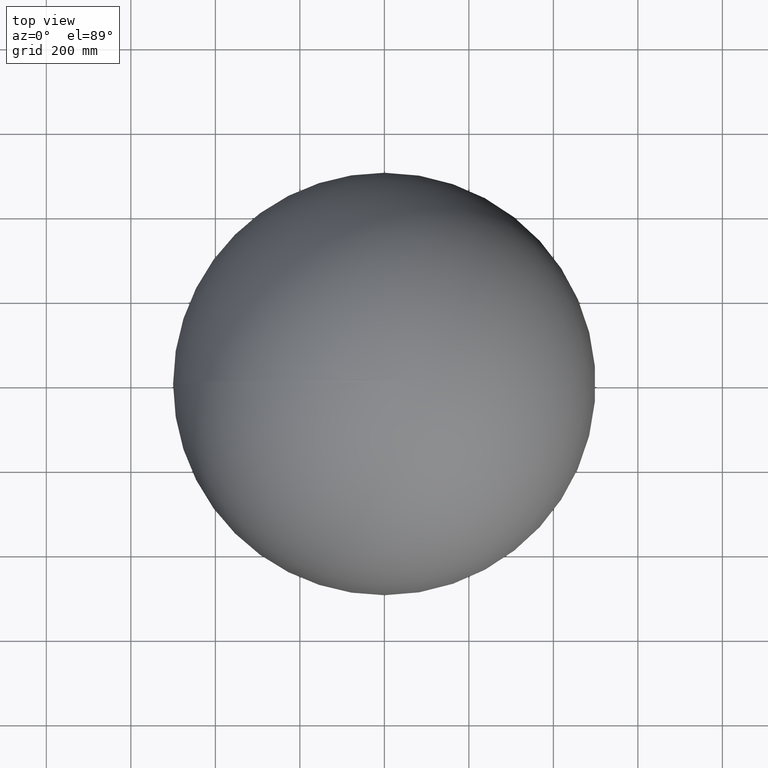
[diagram: clean part render]
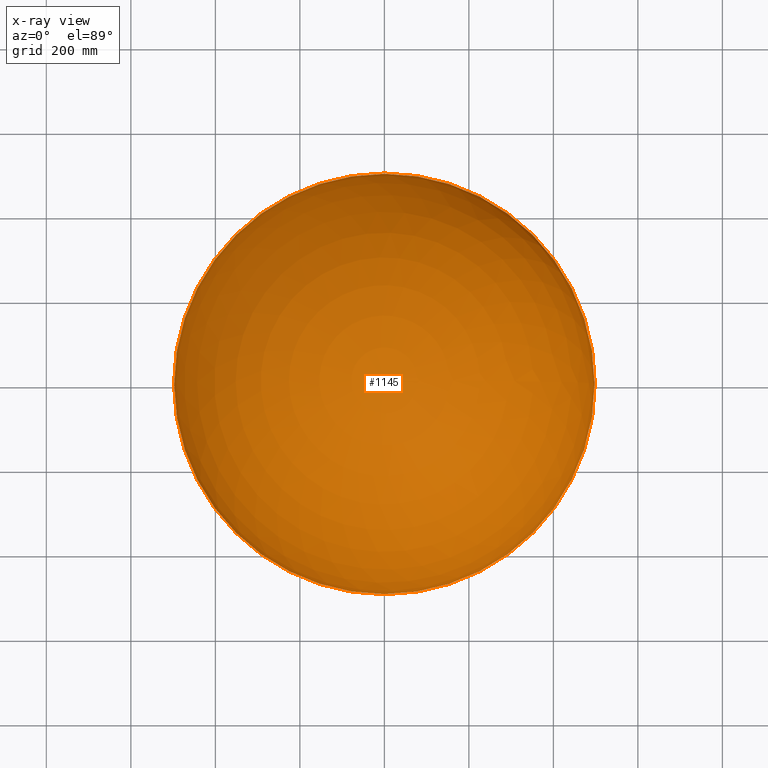
[diagram: x-ray — body ghosted, one internal face saturated and labeled with its STEP entity id]
A machine part, top view, then the same camera in x-ray: the body is ghosted and one INTERNAL B-rep face — a face not visible from any outside direction — is saturated and labeled: STEP entity #1145.
In plain terms, the highlighted spherical surface has radius 497.6 mm.
Its self-contained STEP definition (entity closure, byte-faithful):
#5 = CARTESIAN_POINT ( 'NONE',  ( -497.5907175628906300, -1.849401506776466600, 2.413233139750177600 ) ) ;
#29 = CARTESIAN_POINT ( 'NONE',  ( -497.5930503170708900, -1.958407064898225500, 1.756953773091692200 ) ) ;
#30 = EDGE_CURVE ( 'NONE', #6343, #1064, #4124, .T. ) ;
#54 = CARTESIAN_POINT ( 'NONE',  ( 0.0000000000000000000, 1.118092006946990800, 1.953799001900551300 ) ) ;
#57 = CARTESIAN_POINT ( 'NONE',  ( -497.5910636526707000, -0.01696047008547008400, 2.982127654246796000 ) ) ;
#77 = CARTESIAN_POINT ( 'NONE',  ( -497.5989996434570900, 0.9837072649572652400, 0.1669546274038460100 ) ) ;
#86 = CARTESIAN_POINT ( 'NONE',  ( -497.5889330318297000, -2.621765983000430300, 2.036203928961715100 ) ) ;
#93 = CARTESIAN_POINT ( 'NONE',  ( -497.5878716348169100, 0.3516683186202033100, 3.456965225735331600 ) ) ;
#99 = ORIENTED_EDGE ( 'NONE', *, *, #6047, .F. ) ;
#111 = CARTESIAN_POINT ( 'NONE',  ( -497.5778846439731600, -3.204861111111111600, 3.426014957264957900 ) ) ;
#126 = EDGE_CURVE ( 'NONE', #7509, #8087, #2254, .T. ) ;
#131 = VERTEX_POINT ( 'NONE', #9121 ) ;
#132 = FACE_BOUND ( 'NONE', #7221, .T. ) ;
#134 = ORIENTED_EDGE ( 'NONE', *, *, #7813, .F. ) ;
#151 = DIRECTION ( 'NONE',  ( -0.0000000000000000000, -0.0000000000000000000, -1.000000000000000000 ) ) ;
#156 = CARTESIAN_POINT ( 'NONE',  ( -497.5994048448987400, 0.7696089932901317700, -6.100246582830745600E-014 ) ) ;
#163 = CARTESIAN_POINT ( 'NONE',  ( -497.5832834884829500, -2.017628205128205700, 3.544738247863248800 ) ) ;
#175 = CARTESIAN_POINT ( 'NONE',  ( -497.5949811543858900, -2.236048220886401400, 0.02819405457477211100 ) ) ;
#187 = DIRECTION ( 'NONE',  ( -1.000000000000000000, 0.0000000000000000000, 0.0000000000000000000 ) ) ;
#209 = DIRECTION ( 'NONE',  ( -1.000000000000000000, 0.0000000000000000000, -1.224646799147353200E-016 ) ) ;
#211 = CARTESIAN_POINT ( 'NONE',  ( -497.5885056240589400, -2.699382030670105500, 2.039223337865296900 ) ) ;
#235 = DIRECTION ( 'NONE',  ( -0.0000000000000000000, -0.0000000000000000000, 1.000000000000000000 ) ) ;
#236 = ORIENTED_EDGE ( 'NONE', *, *, #3449, .F. ) ;
#237 = CARTESIAN_POINT ( 'NONE',  ( 0.0000000000000000000, 0.0000000000000000000, 3.426014957264957900 ) ) ;
#260 = AXIS2_PLACEMENT_3D ( 'NONE', #5148, #8906, #4382 ) ;
#277 = CARTESIAN_POINT ( 'NONE',  ( -497.5849421916918200, 1.322916666666666700, 3.638020833333335300 ) ) ;
#292 = CARTESIAN_POINT ( 'NONE',  ( -497.5923542437870400, 0.02657986618785032300, 2.758690700564590000 ) ) ;
#325 = CARTESIAN_POINT ( 'NONE',  ( -497.5906822763029700, 0.1028622440570335800, 3.043767840899427800 ) ) ;
#330 = CARTESIAN_POINT ( 'NONE',  ( -497.5878816785007600, -2.022277786323182000, 2.824238309273746000 ) ) ;
#336 = CARTESIAN_POINT ( 'NONE',  ( -497.5826195347423200, -3.210883758880930500, 2.643571364963924100 ) ) ;
#346 = CARTESIAN_POINT ( 'NONE',  ( -497.5982705686869800, 0.8099674919531999500, 1.032741710262255400 ) ) ;
#397 = CARTESIAN_POINT ( 'NONE',  ( -497.5852437291024400, -2.466685688763100300, 2.933709637931550200 ) ) ;
#424 = ORIENTED_EDGE ( 'NONE', *, *, #7684, .T. ) ;
#447 = ORIENTED_EDGE ( 'NONE', *, *, #5231, .F. ) ;
#451 = CARTESIAN_POINT ( 'NONE',  ( 0.0000000000000000000, 0.4579326923076923500, 0.0000000000000000000 ) ) ;
#464 = EDGE_CURVE ( 'NONE', #6494, #6107, #8470, .T. ) ;
#475 = CARTESIAN_POINT ( 'NONE',  ( -497.5876198796016800, 0.5973196486439659200, 3.459344341057116100 ) ) ;
#481 = CIRCLE ( 'NONE', #9459, 497.5815712359265000 ) ;
#496 = CARTESIAN_POINT ( 'NONE',  ( -497.5926852114106400, -2.543932792467948900, 0.8989049145299137200 ) ) ;
#505 = DIRECTION ( 'NONE',  ( -0.0000000000000000000, -1.000000000000000000, 0.0000000000000000000 ) ) ;
#534 = VERTEX_POINT ( 'NONE', #2617 ) ;
#546 = CARTESIAN_POINT ( 'NONE',  ( -497.5876344132361200, 0.5389224370298854000, 3.466847450660318900 ) ) ;
#550 = EDGE_LOOP ( 'NONE', ( #7787, #9236, #3534, #2598 ) ) ;
#571 = CARTESIAN_POINT ( 'NONE',  ( -497.5989873781453000, 0.9346809061164530500, 0.3662401509081194600 ) ) ;
#581 = EDGE_CURVE ( 'NONE', #9154, #1672, #4768, .T. ) ;
#582 = CARTESIAN_POINT ( 'NONE',  ( -497.5983659174763700, 0.7796516092414529400, 1.009147970085470600 ) ) ;
#587 = AXIS2_PLACEMENT_3D ( 'NONE', #2715, #8711, #8579 ) ;
#588 = DIRECTION ( 'NONE',  ( 0.0000000000000000000, 0.0000000000000000000, -1.000000000000000000 ) ) ;
#590 = CARTESIAN_POINT ( 'NONE',  ( -497.5885145936493400, 0.4579326923076923500, 3.349692841880343300 ) ) ;
#604 = CARTESIAN_POINT ( 'NONE',  ( -497.5989809423340400, 0.9795856884359039900, 0.2361714328487920800 ) ) ;
#663 = CARTESIAN_POINT ( 'NONE',  ( -497.5947440093968900, -1.870487167911051300, 1.318412314365825700 ) ) ;
#668 = CARTESIAN_POINT ( 'NONE',  ( -497.5988604941774200, 0.1114689804400492300, 1.059722799077568600 ) ) ;
#670 = CARTESIAN_POINT ( 'NONE',  ( -497.5931044858031100, 0.6928293732220055500, 2.527045488242341000 ) ) ;
#684 = DIRECTION ( 'NONE',  ( 1.000000000000000000, 0.0000000000000000000, 0.0000000000000000000 ) ) ;
#689 = CARTESIAN_POINT ( 'NONE',  ( -497.5924565734326800, -2.543932792467948900, 1.017628205128205700 ) ) ;
#699 = EDGE_CURVE ( 'NONE', #2458, #6343, #7138, .T. ) ;
#705 = CARTESIAN_POINT ( 'NONE',  ( -497.5926852114106400, -2.543932792467948900, 0.8989049145299137200 ) ) ;
#719 = FACE_BOUND ( 'NONE', #1331, .T. ) ;
#721 = CARTESIAN_POINT ( 'NONE',  ( -497.5983659174763700, 0.7796516092414529400, 1.009147970085470600 ) ) ;
#726 = EDGE_CURVE ( 'NONE', #5545, #2636, #3325, .T. ) ;
#730 = CARTESIAN_POINT ( 'NONE',  ( -497.5992128204266600, 0.8649839743589744500, 0.1876252003205126400 ) ) ;
#731 = AXIS2_PLACEMENT_3D ( 'NONE', #3877, #9130, #209 ) ;
#739 = CARTESIAN_POINT ( 'NONE',  ( -497.5990859609258300, 0.9538655012467806000, 0.02522725754999925400 ) ) ;
#744 = ORIENTED_EDGE ( 'NONE', *, *, #1453, .F. ) ;
#766 = CARTESIAN_POINT ( 'NONE',  ( -497.5968752923171200, 0.9818165607091613500, 1.466321294788013500 ) ) ;
#785 = CARTESIAN_POINT ( 'NONE',  ( -497.5815712359265000, 0.0000000000000000000, 4.282518696581197700 ) ) ;
#813 = B_SPLINE_CURVE_WITH_KNOTS ( 'NONE', 3,
 ( #5846, #9704, #93, #2301, #5332, #6733, #1475, #5252, #4579, #57 ),
 .UNSPECIFIED., .F., .F.,
 ( 4, 2, 2, 2, 4 ),
 ( 0.0000000000000000000, 0.0001932212967424903200, 0.0003864425934849806400, 0.0005796638902274709600, 0.0007728851869699612800 ),
 .UNSPECIFIED. ) ;
#831 = EDGE_CURVE ( 'NONE', #4007, #3714, #3734, .T. ) ;
#832 = CARTESIAN_POINT ( 'NONE',  ( -497.5938075244644700, -1.876332333770016000, 1.625916349511657300 ) ) ;
#843 = CARTESIAN_POINT ( 'NONE',  ( -497.5990237612286400, 0.9801284561845797800, 0.1083625688979705200 ) ) ;
#849 = FACE_OUTER_BOUND ( 'NONE', #5291, .T. ) ;
#864 = EDGE_CURVE ( 'NONE', #4990, #2015, #1588, .T. ) ;
#896 = CIRCLE ( 'NONE', #2307, 497.5997484585587900 ) ;
#909 = CARTESIAN_POINT ( 'NONE',  ( -497.5912414068751000, 0.9529782073869437200, 2.794584157610271000 ) ) ;
#916 = CIRCLE ( 'NONE', #8098, 497.5985836776737900 ) ;
#937 = CARTESIAN_POINT ( 'NONE',  ( -497.5964258646083100, -1.849401524288711600, 0.3779757302182223400 ) ) ;
#943 = CARTESIAN_POINT ( 'NONE',  ( -497.5893348307336100, -2.543932792467948900, 2.035256410256409200 ) ) ;
#962 = CARTESIAN_POINT ( 'NONE',  ( -497.5910190432214800, 0.9646680453191529600, 2.829947478237711400 ) ) ;
#1023 = DIRECTION ( 'NONE',  ( 0.0000000000000000000, -0.4649210893991445600, -0.8853521223964578900 ) ) ;
#1031 = ORIENTED_EDGE ( 'NONE', *, *, #5309, .F. ) ;
#1033 = B_SPLINE_CURVE_WITH_KNOTS ( 'NONE', 3,
 ( #7116, #3432, #8589, #4788, #292, #5556, #1843, #5517, #1054, #1081 ),
 .UNSPECIFIED., .F., .F.,
 ( 4, 2, 2, 2, 4 ),
 ( 0.0000000000000000000, 0.0001365055646513327500, 0.0002730111293026655000, 0.0004095166939539982800, 0.0005460222586053310100 ),
 .UNSPECIFIED. ) ;
#1053 = CARTESIAN_POINT ( 'NONE',  ( -497.5978453287558000, 0.9134159847864401500, 1.145185630807771500 ) ) ;
#1054 = CARTESIAN_POINT ( 'NONE',  ( -497.5933817552627800, 0.2097326996229060500, 2.558236104294232300 ) ) ;
#1060 = EDGE_CURVE ( 'NONE', #4361, #5914, #2134, .T. ) ;
#1064 = VERTEX_POINT ( 'NONE', #1442 ) ;
#1075 = FACE_BOUND ( 'NONE', #550, .T. ) ;
#1081 = CARTESIAN_POINT ( 'NONE',  ( -497.5934769779145800, 0.2499019264155982700, 2.535590277777779000 ) ) ;
#1086 = ORIENTED_EDGE ( 'NONE', *, *, #2964, .F. ) ;
#1109 = B_SPLINE_CURVE_WITH_KNOTS ( 'NONE', 3,
 ( #7474, #9026, #5957, #8232, #3742, #6759, #3816, #2326, #5, #1495 ),
 .UNSPECIFIED., .F., .F.,
 ( 4, 2, 2, 2, 4 ),
 ( 0.0000000000000000000, 0.0002317780366079911900, 0.0004635560732159823800, 0.0006953341098239736300, 0.0009271121464319647600 ),
 .UNSPECIFIED. ) ;
#1145 = ADVANCED_FACE ( 'NONE', ( #1075, #3302, #719, #3084, #2838, #4823, #132, #849 ), #4460, .F. ) ;
#1150 = AXIS2_PLACEMENT_3D ( 'NONE', #7086, #7875, #1023 ) ;
#1151 = CARTESIAN_POINT ( 'NONE',  ( -497.5910636526707000, -0.01696047008547008400, 2.982127654246796000 ) ) ;
#1155 = DIRECTION ( 'NONE',  ( 1.000000000000000000, 0.0000000000000000000, 0.0000000000000000000 ) ) ;
#1158 = CARTESIAN_POINT ( 'NONE',  ( -497.5892500851210800, -3.238782051282051500, 0.4566076555822640700 ) ) ;
#1169 = EDGE_CURVE ( 'NONE', #2636, #2545, #1312, .T. ) ;
#1186 = CARTESIAN_POINT ( 'NONE',  ( -497.5918280219081600, -2.852702831892772300, 0.02822387628410585500 ) ) ;
#1192 = EDGE_CURVE ( 'NONE', #7343, #6494, #6323, .T. ) ;
#1195 = CARTESIAN_POINT ( 'NONE',  ( -497.5890670312283500, 0.9548406942761149500, 3.157522727773278200 ) ) ;
#1231 = EDGE_CURVE ( 'NONE', #1834, #3932, #6477, .T. ) ;
#1237 = CARTESIAN_POINT ( 'NONE',  ( -497.5830061478459900, -2.925783365948461800, 2.890975177842028700 ) ) ;
#1256 = VERTEX_POINT ( 'NONE', #5207 ) ;
#1261 = CARTESIAN_POINT ( 'NONE',  ( -497.5935856896599600, 0.4579326923076923500, 2.484708867521368400 ) ) ;
#1273 = VERTEX_POINT ( 'NONE', #5896 ) ;
#1281 = DIRECTION ( 'NONE',  ( -1.000000000000000000, 2.442490654175344400E-013, 0.0000000000000000000 ) ) ;
#1302 = CARTESIAN_POINT ( 'NONE',  ( -497.5961044013258700, 0.4860234708867521300, 1.908052884615385200 ) ) ;
#1312 = CIRCLE ( 'NONE', #5290, 497.5989767075234300 ) ;
#1331 = EDGE_LOOP ( 'NONE', ( #6639, #8142, #99, #2291, #236, #8593, #5786, #5318, #6097, #5988 ) ) ;
#1344 = CARTESIAN_POINT ( 'NONE',  ( -497.5878849373666500, -3.210978310151412000, 1.322081971819612000 ) ) ;
#1346 = VERTEX_POINT ( 'NONE', #5349 ) ;
#1356 = CIRCLE ( 'NONE', #5552, 497.5993883804858900 ) ;
#1372 = DIRECTION ( 'NONE',  ( -0.0000000000000000000, -0.0000000000000000000, -1.000000000000000000 ) ) ;
#1397 = ORIENTED_EDGE ( 'NONE', *, *, #1569, .F. ) ;
#1410 = DIRECTION ( 'NONE',  ( -0.0000000000000000000, -1.000000000000000000, 0.0000000000000000000 ) ) ;
#1427 = CARTESIAN_POINT ( 'NONE',  ( -497.5885721400811100, 0.4110650081964310500, 3.347551690730374800 ) ) ;
#1438 = CIRCLE ( 'NONE', #6313, 497.5990608920344000 ) ;
#1442 = CARTESIAN_POINT ( 'NONE',  ( -497.5971268125280200, 1.356837606837606900, 1.009147970085470600 ) ) ;
#1452 = CARTESIAN_POINT ( 'NONE',  ( -497.5926273536715000, 0.7934319911858973600, 2.589916783520300300 ) ) ;
#1453 = EDGE_CURVE ( 'NONE', #6201, #9665, #5710, .T. ) ;
#1462 = CARTESIAN_POINT ( 'NONE',  ( -497.5930809482344400, -2.466686361517886900, 0.8984532316089372000 ) ) ;
#1475 = CARTESIAN_POINT ( 'NONE',  ( -497.5894973796985700, 0.03939000275826588100, 3.233375527845499900 ) ) ;
#1478 = DIRECTION ( 'NONE',  ( -0.0000000000000000000, -1.000000000000000000, 0.0000000000000000000 ) ) ;
#1491 = CARTESIAN_POINT ( 'NONE',  ( -497.5872935594542800, -3.064450780262425200, 1.805652926600333600 ) ) ;
#1495 = CARTESIAN_POINT ( 'NONE',  ( -497.5903289078325400, -1.848023504273504500, 2.491864065838674100 ) ) ;
#1518 = B_SPLINE_CURVE_WITH_KNOTS ( 'NONE', 3,
 ( #3434, #2172, #5816, #1344, #3691, #7373, #8104, #7416, #7448, #3655, #5187, #2100 ),
 .UNSPECIFIED., .F., .F.,
 ( 4, 2, 2, 2, 2, 4 ),
 ( 0.0000000000000000000, 0.0001159968809214894500, 0.0002319937618429788900, 0.0004639875236859574100, 0.0006959812855289359200, 0.0009279750473719143800 ),
 .UNSPECIFIED. ) ;
#1530 = ORIENTED_EDGE ( 'NONE', *, *, #6602, .F. ) ;
#1534 = CARTESIAN_POINT ( 'NONE',  ( -497.5936266972207700, -1.893536245858423100, 1.660928340542332700 ) ) ;
#1569 = EDGE_CURVE ( 'NONE', #9665, #1834, #5592, .T. ) ;
#1581 = CARTESIAN_POINT ( 'NONE',  ( 0.0000000000000000000, 0.9667467948717949300, 0.0000000000000000000 ) ) ;
#1584 = B_SPLINE_CURVE_WITH_KNOTS ( 'NONE', 3,
 ( #2393, #8387, #7611, #2358, #1696, #4573, #1634, #5414, #9197, #211, #86, #943 ),
 .UNSPECIFIED., .F., .F.,
 ( 4, 2, 2, 2, 2, 4 ),
 ( 0.0000000000000000000, 0.0001159975495013450800, 0.0002319950990026901600, 0.0004639901980053797300, 0.0006959852970080693800, 0.0009279803960107590300 ),
 .UNSPECIFIED. ) ;
#1588 = B_SPLINE_CURVE_WITH_KNOTS ( 'NONE', 3,
 ( #8634, #7154, #7121, #7885, #4126, #4162, #7846, #3382, #2700, #9395, #4888, #2678 ),
 .UNSPECIFIED., .F., .F.,
 ( 4, 2, 2, 2, 2, 4 ),
 ( 0.0000000000000000000, 0.0001567064430476401100, 0.0003134128860952802100, 0.0004701193291429203500, 0.0005484725506667404400, 0.0006268257721905607500 ),
 .UNSPECIFIED. ) ;
#1597 = CIRCLE ( 'NONE', #5044, 497.5882056696205500 ) ;
#1607 = CIRCLE ( 'NONE', #4051, 497.5999999999999700 ) ;
#1619 = AXIS2_PLACEMENT_3D ( 'NONE', #7904, #2691, #1962 ) ;
#1624 = CARTESIAN_POINT ( 'NONE',  ( -497.5989767075234300, 0.0000000000000000000, 1.009147970085470600 ) ) ;
#1634 = CARTESIAN_POINT ( 'NONE',  ( -497.5858860207433700, -3.066303901087331400, 2.156344045548594000 ) ) ;
#1639 = EDGE_CURVE ( 'NONE', #9235, #2568, #7200, .T. ) ;
#1648 = CARTESIAN_POINT ( 'NONE',  ( -497.5989486101917100, 0.1672196347489316400, 1.009147970085470600 ) ) ;
#1672 = VERTEX_POINT ( 'NONE', #4753 ) ;
#1696 = CARTESIAN_POINT ( 'NONE',  ( -497.5844160736471100, -3.193875283416827600, 2.304246209378728600 ) ) ;
#1714 = CIRCLE ( 'NONE', #8773, 497.5949080725446300 ) ;
#1717 = CARTESIAN_POINT ( 'NONE',  ( -497.5903368412346600, 0.9827332798680265000, 2.941486324557690800 ) ) ;
#1723 = AXIS2_PLACEMENT_3D ( 'NONE', #1748, #6941, #9211 ) ;
#1732 = CARTESIAN_POINT ( 'NONE',  ( -497.5992128204266600, 0.8649839743589744500, 0.1876252003205126400 ) ) ;
#1748 = CARTESIAN_POINT ( 'NONE',  ( 0.0000000000000000000, 0.0000000000000000000, 2.145499465811965900 ) ) ;
#1755 = CARTESIAN_POINT ( 'NONE',  ( -497.5901090380103800, 0.9837072649572650200, 2.979212573450856100 ) ) ;
#1757 = CARTESIAN_POINT ( 'NONE',  ( -497.5901310937512100, -1.848678397196730700, 2.530879081781652200 ) ) ;
#1762 = CARTESIAN_POINT ( 'NONE',  ( 0.0000000000000000000, 0.0000000000000000000, 2.264222756410256800 ) ) ;
#1775 = CARTESIAN_POINT ( 'NONE',  ( -497.5975025937589700, 0.9625589469191160300, 1.249135728553147700 ) ) ;
#1780 = ORIENTED_EDGE ( 'NONE', *, *, #5892, .F. ) ;
#1782 = CARTESIAN_POINT ( 'NONE',  ( -497.5856380690154900, -2.389713955740000000, 2.930524689317993000 ) ) ;
#1792 = VERTEX_POINT ( 'NONE', #4384 ) ;
#1803 = CARTESIAN_POINT ( 'NONE',  ( -497.5934971499802400, -2.543932792467948900, -8.673617379884035500E-016 ) ) ;
#1807 = EDGE_CURVE ( 'NONE', #2545, #2458, #1607, .T. ) ;
#1814 = VERTEX_POINT ( 'NONE', #6556 ) ;
#1834 = VERTEX_POINT ( 'NONE', #5650 ) ;
#1843 = CARTESIAN_POINT ( 'NONE',  ( -497.5929687114151500, 0.1025859600395227400, 2.643679927633261900 ) ) ;
#1852 = CARTESIAN_POINT ( 'NONE',  ( -497.5894417759033100, -1.876332109753907000, 2.643543960307489300 ) ) ;
#1876 = CARTESIAN_POINT ( 'NONE',  ( 0.0000000000000000000, 0.0000000000000000000, 0.8904246794871799600 ) ) ;
#1878 = CARTESIAN_POINT ( 'NONE',  ( -497.5895481677317800, -3.210978224276702400, 0.3044535339705312100 ) ) ;
#1895 = VERTEX_POINT ( 'NONE', #9067 ) ;
#1913 = ORIENTED_EDGE ( 'NONE', *, *, #864, .F. ) ;
#1939 = CARTESIAN_POINT ( 'NONE',  ( -497.5913854492162600, -2.928589624231262800, 0.04995694411333671800 ) ) ;
#1962 = DIRECTION ( 'NONE',  ( -1.000000000000000000, 0.0000000000000000000, -1.224646799147353200E-016 ) ) ;
#1980 = CARTESIAN_POINT ( 'NONE',  ( -497.5887063635613600, 0.9242226281949097500, 3.222795604311994700 ) ) ;
#2015 = VERTEX_POINT ( 'NONE', #1732 ) ;
#2041 = CARTESIAN_POINT ( 'NONE',  ( -497.5946009499343700, -2.020799327114345600, 1.138221871445093300 ) ) ;
#2100 = CARTESIAN_POINT ( 'NONE',  ( -497.5924565734326800, -2.543932792467948900, 1.017628205128205700 ) ) ;
#2101 = CARTESIAN_POINT ( 'NONE',  ( 0.0000000000000000000, 0.0000000000000000000, 0.0000000000000000000 ) ) ;
#2119 = CARTESIAN_POINT ( 'NONE',  ( -497.5922913629793800, -2.621129458031041400, 0.8984521074640415800 ) ) ;
#2124 = VERTEX_POINT ( 'NONE', #6287 ) ;
#2134 = CIRCLE ( 'NONE', #6462, 497.5999999999999700 ) ;
#2159 = DIRECTION ( 'NONE',  ( 0.0000000000000000000, 0.0000000000000000000, 1.000000000000000000 ) ) ;
#2171 = CARTESIAN_POINT ( 'NONE',  ( -497.5990394830690800, 0.8730070667600171600, 0.4401865382938406300 ) ) ;
#2172 = CARTESIAN_POINT ( 'NONE',  ( -497.5873952986327100, -3.238212545466212500, 1.435113355008167800 ) ) ;
#2176 = CIRCLE ( 'NONE', #731, 497.5999999999999700 ) ;
#2179 = CARTESIAN_POINT ( 'NONE',  ( -497.5938829207785800, -2.236048358697045700, 1.045822226565188900 ) ) ;
#2227 = CARTESIAN_POINT ( 'NONE',  ( -497.5989905821223300, 0.9824189787933600400, 0.2015520972900990700 ) ) ;
#2247 = CARTESIAN_POINT ( 'NONE',  ( -497.5942075578535700, -2.237176824657614000, 0.8749656614909663300 ) ) ;
#2249 = DIRECTION ( 'NONE',  ( 0.0000000000000000000, 0.0000000000000000000, -1.000000000000000000 ) ) ;
#2251 = ORIENTED_EDGE ( 'NONE', *, *, #5368, .F. ) ;
#2254 = CIRCLE ( 'NONE', #4801, 497.5825788829599800 ) ;
#2268 = DIRECTION ( 'NONE',  ( 1.000000000000000000, 0.0000000000000000000, 0.0000000000000000000 ) ) ;
#2282 = CARTESIAN_POINT ( 'NONE',  ( 0.0000000000000000000, 1.356837606837606900, 0.0000000000000000000 ) ) ;
#2285 = CARTESIAN_POINT ( 'NONE',  ( -497.5895810953914000, 0.1711506559511467000, 3.215845615091257800 ) ) ;
#2289 = CARTESIAN_POINT ( 'NONE',  ( -497.5909643740953900, 0.1017628205128205100, 2.996968065571582700 ) ) ;
#2291 = ORIENTED_EDGE ( 'NONE', *, *, #4778, .F. ) ;
#2292 = CIRCLE ( 'NONE', #6410, 497.5896792189911400 ) ;
#2301 = CARTESIAN_POINT ( 'NONE',  ( -497.5882713228115200, 0.2298407316956631600, 3.409353671799078400 ) ) ;
#2307 = AXIS2_PLACEMENT_3D ( 'NONE', #6493, #6453, #2819 ) ;
#2316 = CARTESIAN_POINT ( 'NONE',  ( -497.5991132243053700, 0.9394244966590122900, -4.316943543867417900E-012 ) ) ;
#2326 = CARTESIAN_POINT ( 'NONE',  ( -497.5910071423663800, -1.870486875634435700, 2.336041294655312400 ) ) ;
#2349 = CARTESIAN_POINT ( 'NONE',  ( -497.5993147336535600, 0.8252120235967197500, 0.04854068860139752100 ) ) ;
#2358 = CARTESIAN_POINT ( 'NONE',  ( -497.5841405119761600, -3.210978549702295600, 2.339710797786247000 ) ) ;
#2393 = CARTESIAN_POINT ( 'NONE',  ( -497.5832200791156800, -3.238782051282051500, 2.491864065838674100 ) ) ;
#2409 = CARTESIAN_POINT ( 'NONE',  ( -497.5960392654750400, 0.7391332873327808300, 1.843824532930034000 ) ) ;
#2415 = CARTESIAN_POINT ( 'NONE',  ( -497.5918882661721300, 0.8991665923725723500, 2.695482932262368300 ) ) ;
#2432 = VERTEX_POINT ( 'NONE', #111 ) ;
#2433 = AXIS2_PLACEMENT_3D ( 'NONE', #1876, #5622, #9332 ) ;
#2437 = B_SPLINE_CURVE_WITH_KNOTS ( 'NONE', 3,
 ( #5924, #8957, #3042, #670, #5165, #1452 ),
 .UNSPECIFIED., .F., .F.,
 ( 4, 2, 4 ),
 ( 0.0000000000000000000, 0.0001797108777525056100, 0.0003594217555050112100 ),
 .UNSPECIFIED. ) ;
#2444 = DIRECTION ( 'NONE',  ( -0.0000000000000000000, -0.0000000000000000000, 1.000000000000000000 ) ) ;
#2458 = VERTEX_POINT ( 'NONE', #9051 ) ;
#2473 = CARTESIAN_POINT ( 'NONE',  ( -497.5942722342842900, -2.388765346042319900, 0.004042138509152703300 ) ) ;
#2508 = CARTESIAN_POINT ( 'NONE',  ( -497.5922789984389900, 0.8508647564699297600, 2.638428964303917400 ) ) ;
#2520 = ORIENTED_EDGE ( 'NONE', *, *, #5506, .F. ) ;
#2537 = VERTEX_POINT ( 'NONE', #4664 ) ;
#2539 = DIRECTION ( 'NONE',  ( -0.0000000000000000000, -0.0000000000000000000, 1.000000000000000000 ) ) ;
#2545 = VERTEX_POINT ( 'NONE', #1624 ) ;
#2568 = VERTEX_POINT ( 'NONE', #3231 ) ;
#2577 = CARTESIAN_POINT ( 'NONE',  ( -497.5864664360069000, -2.237174526126761300, 2.910221668931949800 ) ) ;
#2594 = CARTESIAN_POINT ( 'NONE',  ( -497.5971681592961300, 0.9825499327090927400, 1.361735638456365500 ) ) ;
#2598 = ORIENTED_EDGE ( 'NONE', *, *, #7357, .F. ) ;
#2617 = CARTESIAN_POINT ( 'NONE',  ( -497.5829024975432700, -1.881944444444444900, 3.670616736778847100 ) ) ;
#2636 = VERTEX_POINT ( 'NONE', #1648 ) ;
#2642 = CARTESIAN_POINT ( 'NONE',  ( -497.5984201419220800, 0.001798511709231395400, 1.254473576684636400 ) ) ;
#2657 = CARTESIAN_POINT ( 'NONE',  ( -497.5825601602609800, -3.064451638794134500, 2.823280613804037400 ) ) ;
#2670 = CARTESIAN_POINT ( 'NONE',  ( -497.5970573498757400, 0.9837072649572650200, 1.400298811431624400 ) ) ;
#2678 = CARTESIAN_POINT ( 'NONE',  ( -497.5992128204266600, 0.8649839743589744500, 0.1876252003205126400 ) ) ;
#2691 = DIRECTION ( 'NONE',  ( 1.224646799147353200E-016, 1.547252175779510400E-030, -1.000000000000000000 ) ) ;
#2700 = CARTESIAN_POINT ( 'NONE',  ( -497.5991955626078000, 0.8468147261059891800, 0.2900926226797664300 ) ) ;
#2702 = EDGE_CURVE ( 'NONE', #1064, #7981, #7906, .T. ) ;
#2704 = CARTESIAN_POINT ( 'NONE',  ( -497.5880265602133900, 0.8035022702991453400, 3.357113047542736400 ) ) ;
#2712 = CARTESIAN_POINT ( 'NONE',  ( -497.5978312652325100, -0.01515374704567060100, 1.470551500802447700 ) ) ;
#2715 = CARTESIAN_POINT ( 'NONE',  ( 0.0000000000000000000, 0.0000000000000000000, 4.163795405982907200 ) ) ;
#2741 = CIRCLE ( 'NONE', #260, 497.5999999999999700 ) ;
#2763 = CARTESIAN_POINT ( 'NONE',  ( -497.5877358361513000, 0.7061682690397806900, 3.421956064588680400 ) ) ;
#2773 = EDGE_CURVE ( 'NONE', #3932, #6201, #1518, .T. ) ;
#2776 = DIRECTION ( 'NONE',  ( -0.0000000000000000000, -1.000000000000000000, 0.0000000000000000000 ) ) ;
#2798 = CARTESIAN_POINT ( 'NONE',  ( 0.0000000000000000000, 0.0000000000000000000, 3.638020833333335300 ) ) ;
#2807 = CARTESIAN_POINT ( 'NONE',  ( -497.5989486101917100, 0.1672196347489316400, 1.009147970085470600 ) ) ;
#2819 = DIRECTION ( 'NONE',  ( 1.000000000000000000, 0.0000000000000000000, 0.0000000000000000000 ) ) ;
#2838 = FACE_BOUND ( 'NONE', #7860, .T. ) ;
#2883 = CARTESIAN_POINT ( 'NONE',  ( -497.5896208132617200, -3.128712284498119400, 0.7391532307529685700 ) ) ;
#2913 = DIRECTION ( 'NONE',  ( 0.0000000000000000000, 0.0000000000000000000, -1.000000000000000000 ) ) ;
#2942 = CARTESIAN_POINT ( 'NONE',  ( -497.5882429960034300, -2.851163558159409000, 1.891367208226420800 ) ) ;
#2945 = CARTESIAN_POINT ( 'NONE',  ( -497.5959828783260800, -1.893536390010704100, 0.6433004285761175800 ) ) ;
#2946 = CARTESIAN_POINT ( 'NONE',  ( -497.5986758110088900, 0.9667467948717949300, 0.6190571581196578900 ) ) ;
#2947 = CARTESIAN_POINT ( 'NONE',  ( -497.5872756808108800, -3.238782051282051500, 1.474235860710470600 ) ) ;
#2964 = EDGE_CURVE ( 'NONE', #534, #7343, #1714, .T. ) ;
#2966 = DIRECTION ( 'NONE',  ( 0.0000000000000000000, 0.0000000000000000000, -1.000000000000000000 ) ) ;
#2985 = CARTESIAN_POINT ( 'NONE',  ( -497.5923236848178700, 0.1710486718042415500, 2.758881147223537500 ) ) ;
#3007 = EDGE_CURVE ( 'NONE', #2432, #3604, #1597, .T. ) ;
#3016 = CARTESIAN_POINT ( 'NONE',  ( -497.5924752164893300, 0.1936680326616094000, 2.729903462655502100 ) ) ;
#3042 = CARTESIAN_POINT ( 'NONE',  ( -497.5934248447486500, 0.5778088889129539000, 2.492647472240606900 ) ) ;
#3048 = CARTESIAN_POINT ( 'NONE',  ( -497.5960921024149600, -1.876332418183510600, 0.6082883746036081800 ) ) ;
#3063 = CARTESIAN_POINT ( 'NONE',  ( -497.5913775914764300, -2.237175882309384400, 1.892593701185199200 ) ) ;
#3084 = FACE_BOUND ( 'NONE', #6732, .T. ) ;
#3087 = VERTEX_POINT ( 'NONE', #9199 ) ;
#3101 = CARTESIAN_POINT ( 'NONE',  ( -497.5941311189466200, -1.853311941682773700, 1.551587742777242900 ) ) ;
#3126 = CIRCLE ( 'NONE', #1619, 497.5999999999999700 ) ;
#3148 = DIRECTION ( 'NONE',  ( 0.0000000000000000000, 0.0000000000000000000, -1.000000000000000000 ) ) ;
#3198 = AXIS2_PLACEMENT_3D ( 'NONE', #2282, #8897, #2913 ) ;
#3209 = B_SPLINE_CURVE_WITH_KNOTS ( 'NONE', 3,
 ( #5232, #766, #5972, #5433, #3230, #3902, #2409, #3258, #3281, #6140 ),
 .UNSPECIFIED., .F., .F.,
 ( 4, 2, 2, 2, 4 ),
 ( 0.0000000000000000000, 0.0001961887524280425900, 0.0003923775048560851700, 0.0005885662572841278200, 0.0007847550097121703500 ),
 .UNSPECIFIED. ) ;
#3230 = CARTESIAN_POINT ( 'NONE',  ( -497.5962796898562000, 0.8858189080670614300, 1.709424089879148600 ) ) ;
#3231 = CARTESIAN_POINT ( 'NONE',  ( -497.5860891554846100, 0.7801816239316239400, 3.638020833333335300 ) ) ;
#3236 = ORIENTED_EDGE ( 'NONE', *, *, #6171, .F. ) ;
#3244 = EDGE_CURVE ( 'NONE', #1256, #2124, #6724, .T. ) ;
#3258 = CARTESIAN_POINT ( 'NONE',  ( -497.5960084301066800, 0.6187108272188336400, 1.895756036568220000 ) ) ;
#3264 = ORIENTED_EDGE ( 'NONE', *, *, #126, .F. ) ;
#3273 = B_SPLINE_CURVE_WITH_KNOTS ( 'NONE', 3,
 ( #3648, #6032, #5247, #3016, #2985, #4409, #6788, #2289 ),
 .UNSPECIFIED., .F., .F.,
 ( 4, 2, 2, 4 ),
 ( 1.626303258728256700E-019, 0.0001069487784596849700, 0.0002138975569193697800, 0.0004277951138387390200 ),
 .UNSPECIFIED. ) ;
#3281 = CARTESIAN_POINT ( 'NONE',  ( -497.5960466389277000, 0.5525173919749990500, 1.906179109520106400 ) ) ;
#3285 = CARTESIAN_POINT ( 'NONE',  ( -497.5899173811004600, -1.853311907370324800, 2.569215708141024300 ) ) ;
#3302 = FACE_BOUND ( 'NONE', #3407, .T. ) ;
#3324 = DIRECTION ( 'NONE',  ( 0.0000000000000000000, 0.0000000000000000000, -1.000000000000000000 ) ) ;
#3325 = B_SPLINE_CURVE_WITH_KNOTS ( 'NONE', 3,
 ( #9484, #5769, #7093, #2642, #9359, #7608, #6571, #668, #5574, #2807 ),
 .UNSPECIFIED., .F., .F.,
 ( 4, 2, 2, 2, 4 ),
 ( 0.0000000000000000000, 0.0001129911088872437600, 0.0002259822177744875200, 0.0003389733266617313100, 0.0004519644355489750400 ),
 .UNSPECIFIED. ) ;
#3332 = CARTESIAN_POINT ( 'NONE',  ( 0.0000000000000000000, 0.0000000000000000000, 0.0000000000000000000 ) ) ;
#3354 = CARTESIAN_POINT ( 'NONE',  ( -497.5930992340237800, -2.621765191565104600, 0.0009475090706025336100 ) ) ;
#3368 = EDGE_CURVE ( 'NONE', #2568, #7509, #1356, .T. ) ;
#3382 = CARTESIAN_POINT ( 'NONE',  ( -497.5991989390493000, 0.8360661860764184700, 0.3144662118006474900 ) ) ;
#3407 = EDGE_LOOP ( 'NONE', ( #5873, #4608, #5866, #3533, #7217, #7369, #6980, #6031, #4399 ) ) ;
#3410 = VERTEX_POINT ( 'NONE', #8191 ) ;
#3432 = CARTESIAN_POINT ( 'NONE',  ( -497.5913388504757200, -0.01603251121454804500, 2.936214049664358500 ) ) ;
#3434 = CARTESIAN_POINT ( 'NONE',  ( -497.5872756808108800, -3.238782051282051500, 1.474235860710470600 ) ) ;
#3437 = VERTEX_POINT ( 'NONE', #3732 ) ;
#3440 = DIRECTION ( 'NONE',  ( -0.0000000000000000000, -0.0000000000000000000, -1.000000000000000000 ) ) ;
#3449 = EDGE_CURVE ( 'NONE', #131, #6446, #8679, .T. ) ;
#3458 = AXIS2_PLACEMENT_3D ( 'NONE', #9223, #4671, #3324 ) ;
#3463 = CARTESIAN_POINT ( 'NONE',  ( -497.5963588276912900, -1.848023504273504500, 0.4566076555822640700 ) ) ;
#3484 = CARTESIAN_POINT ( 'NONE',  ( -497.5848461350762500, -2.543932792467948900, 2.934161324786323600 ) ) ;
#3489 = EDGE_CURVE ( 'NONE', #5914, #4990, #896, .T. ) ;
#3503 = AXIS2_PLACEMENT_3D ( 'NONE', #8905, #6523, #684 ) ;
#3526 = CIRCLE ( 'NONE', #9346, 497.5999999999999700 ) ;
#3528 = CARTESIAN_POINT ( 'NONE',  ( -497.5943844515878700, -1.848023504273504500, 1.474235860710470600 ) ) ;
#3533 = ORIENTED_EDGE ( 'NONE', *, *, #1169, .F. ) ;
#3534 = ORIENTED_EDGE ( 'NONE', *, *, #5310, .F. ) ;
#3597 = CARTESIAN_POINT ( 'NONE',  ( -497.5880265602133900, 0.8035022702991453400, 3.357113047542736400 ) ) ;
#3604 = VERTEX_POINT ( 'NONE', #4808 ) ;
#3625 = DIRECTION ( 'NONE',  ( -0.0000000000000000000, -1.000000000000000000, 0.0000000000000000000 ) ) ;
#3630 = CARTESIAN_POINT ( 'NONE',  ( -497.5942664282477500, -1.848678398960894600, 1.513250981752848100 ) ) ;
#3644 = ORIENTED_EDGE ( 'NONE', *, *, #6849, .F. ) ;
#3645 = AXIS2_PLACEMENT_3D ( 'NONE', #9498, #1372, #7234 ) ;
#3648 = CARTESIAN_POINT ( 'NONE',  ( -497.5928974413952800, 0.3052884615384616800, 2.641063201121796500 ) ) ;
#3655 = CARTESIAN_POINT ( 'NONE',  ( -497.5916354895287000, -2.699381148024665700, 1.021595100932661600 ) ) ;
#3678 = CIRCLE ( 'NONE', #6108, 497.5997892861785200 ) ;
#3681 = CARTESIAN_POINT ( 'NONE',  ( -497.5885145936493400, 0.4579326923076923500, 3.349692841880343300 ) ) ;
#3691 = CARTESIAN_POINT ( 'NONE',  ( -497.5880879686844800, -3.193874908186477200, 1.286617268626183900 ) ) ;
#3709 = CARTESIAN_POINT ( 'NONE',  ( -497.5870685682471000, -3.128712684185930300, 1.756781068518394000 ) ) ;
#3712 = CARTESIAN_POINT ( 'NONE',  ( -497.5991132243053700, 0.9394244966590122900, -4.316943543867417900E-012 ) ) ;
#3713 = CARTESIAN_POINT ( 'NONE',  ( -497.5926852114106400, -2.543932792467948900, 0.8989049145299137200 ) ) ;
#3714 = VERTEX_POINT ( 'NONE', #1803 ) ;
#3724 = EDGE_CURVE ( 'NONE', #3437, #3714, #3126, .T. ) ;
#3732 = CARTESIAN_POINT ( 'NONE',  ( 6.317283363217772100E-012, -497.5999999999999700, 0.0000000000000000000 ) ) ;
#3734 = B_SPLINE_CURVE_WITH_KNOTS ( 'NONE', 3,
 ( #1158, #5662, #6339, #1878, #6402, #6371, #7096, #1939, #1186, #9335, #3354, #4855 ),
 .UNSPECIFIED., .F., .F.,
 ( 4, 2, 2, 2, 2, 4 ),
 ( 0.0000000000000000000, 0.0001159963765646631800, 0.0002319927531293263600, 0.0004639855062586529300, 0.0006959782593879795000, 0.0009279710125173060800 ),
 .UNSPECIFIED. ) ;
#3735 = CARTESIAN_POINT ( 'NONE',  ( -497.5992290198058800, 0.8636150425672549600, 0.1509739708342660600 ) ) ;
#3741 = CARTESIAN_POINT ( 'NONE',  ( -497.5889356476639000, 0.2775455738688281100, 3.306999697192937400 ) ) ;
#3742 = CARTESIAN_POINT ( 'NONE',  ( -497.5909479129800800, -2.159901175679035800, 2.085534811526290200 ) ) ;
#3744 = CARTESIAN_POINT ( 'NONE',  ( -497.5989946607159600, 0.9256076684618201900, 0.3795013462885935600 ) ) ;
#3756 = EDGE_CURVE ( 'NONE', #3087, #6167, #7419, .T. ) ;
#3771 = CARTESIAN_POINT ( 'NONE',  ( -497.5945779423050200, -2.160788691969340600, 0.8561058966491674700 ) ) ;
#3782 = VERTEX_POINT ( 'NONE', #3463 ) ;
#3799 = CARTESIAN_POINT ( 'NONE',  ( -497.5898062729467600, -2.543932792467948900, 1.916533119658120100 ) ) ;
#3807 = EDGE_CURVE ( 'NONE', #6167, #9235, #5436, .T. ) ;
#3816 = CARTESIAN_POINT ( 'NONE',  ( -497.5912625292119700, -1.958768052598287300, 2.205647600537534700 ) ) ;
#3877 = CARTESIAN_POINT ( 'NONE',  ( 0.0000000000000000000, 0.0000000000000000000, 0.0000000000000000000 ) ) ;
#3887 = EDGE_CURVE ( 'NONE', #5200, #2537, #3273, .T. ) ;
#3902 = CARTESIAN_POINT ( 'NONE',  ( -497.5960996267670000, 0.7938788947306222300, 1.804372348434069500 ) ) ;
#3912 = ORIENTED_EDGE ( 'NONE', *, *, #6295, .F. ) ;
#3931 = DIRECTION ( 'NONE',  ( 0.0000000000000000000, 1.000000000000000000, 0.0000000000000000000 ) ) ;
#3932 = VERTEX_POINT ( 'NONE', #2947 ) ;
#3953 = EDGE_CURVE ( 'NONE', #3714, #4856, #2176, .T. ) ;
#3997 = CARTESIAN_POINT ( 'NONE',  ( -497.5891893444784800, -1.893535895767178000, 2.678555859211570600 ) ) ;
#4007 = VERTEX_POINT ( 'NONE', #4799 ) ;
#4047 = EDGE_CURVE ( 'NONE', #6107, #2432, #2292, .T. ) ;
#4051 = AXIS2_PLACEMENT_3D ( 'NONE', #2101, #3625, #7313 ) ;
#4053 = CARTESIAN_POINT ( 'NONE',  ( -6.256344938492199100E-012, 497.5999999999999700, 0.0000000000000000000 ) ) ;
#4060 = CARTESIAN_POINT ( 'NONE',  ( 0.0000000000000000000, 0.0000000000000000000, 1.009147970085470600 ) ) ;
#4063 = ORIENTED_EDGE ( 'NONE', *, *, #1231, .F. ) ;
#4067 = VERTEX_POINT ( 'NONE', #1261 ) ;
#4124 = CIRCLE ( 'NONE', #8820, 497.5981501088088000 ) ;
#4126 = CARTESIAN_POINT ( 'NONE',  ( -497.5993329753966900, 0.6665885701038863900, 0.4713990837898000000 ) ) ;
#4132 = EDGE_LOOP ( 'NONE', ( #1086, #2520, #9280, #8519, #6561, #5568 ) ) ;
#4162 = CARTESIAN_POINT ( 'NONE',  ( -497.5992498644315000, 0.7572763389318700700, 0.4192873469666160700 ) ) ;
#4169 = CARTESIAN_POINT ( 'NONE',  ( -497.5885403376503900, 0.9043549128100354400, 3.253915334488780800 ) ) ;
#4190 = ORIENTED_EDGE ( 'NONE', *, *, #3953, .T. ) ;
#4205 = EDGE_CURVE ( 'NONE', #7278, #4067, #3678, .T. ) ;
#4232 = CARTESIAN_POINT ( 'NONE',  ( -497.5830287544942500, -3.238122120835031900, 2.530926105186130500 ) ) ;
#4274 = CARTESIAN_POINT ( 'NONE',  ( -497.5980189583868300, -0.01696047008547008400, 1.404008914262821200 ) ) ;
#4288 = CARTESIAN_POINT ( 'NONE',  ( -497.5876797054140800, 0.4807233239850427500, 3.468416132478633800 ) ) ;
#4301 = VERTEX_POINT ( 'NONE', #8224 ) ;
#4303 = CARTESIAN_POINT ( 'NONE',  ( -497.5892612555809400, 0.9661140628129468700, 3.123305609320606200 ) ) ;
#4314 = CARTESIAN_POINT ( 'NONE',  ( -497.5962629980672300, 0.3539233612600123400, 1.896885132911012800 ) ) ;
#4326 = DIRECTION ( 'NONE',  ( -0.0000000000000000000, -0.0000000000000000000, -1.000000000000000000 ) ) ;
#4327 = EDGE_CURVE ( 'NONE', #4067, #8499, #2437, .T. ) ;
#4330 = CARTESIAN_POINT ( 'NONE',  ( 0.0000000000000000000, 1.356837606837606900, 0.0000000000000000000 ) ) ;
#4331 = EDGE_CURVE ( 'NONE', #2015, #4856, #8789, .T. ) ;
#4361 = VERTEX_POINT ( 'NONE', #5374 ) ;
#4376 = CARTESIAN_POINT ( 'NONE',  ( -497.5893376870951700, -3.193489556590050500, 0.6435268881162391500 ) ) ;
#4382 = DIRECTION ( 'NONE',  ( 0.0000000000000000000, 0.0000000000000000000, 1.000000000000000000 ) ) ;
#4384 = CARTESIAN_POINT ( 'NONE',  ( -497.5970573498757400, 0.9837072649572650200, 1.400298811431624400 ) ) ;
#4399 = ORIENTED_EDGE ( 'NONE', *, *, #2702, .F. ) ;
#4409 = CARTESIAN_POINT ( 'NONE',  ( -497.5918137464079200, 0.1194742255862644400, 2.852667177658220900 ) ) ;
#4435 = CARTESIAN_POINT ( 'NONE',  ( -497.5934622518276500, -2.389715253610657600, 0.8952683549254379900 ) ) ;
#4437 = VERTEX_POINT ( 'NONE', #2316 ) ;
#4458 = CARTESIAN_POINT ( 'NONE',  ( -497.5869854009992500, -3.210883300635036400, 1.625944377053073700 ) ) ;
#4460 = SPHERICAL_SURFACE ( 'NONE', #5856, 497.5999999999999700 ) ;
#4464 = CARTESIAN_POINT ( 'NONE',  ( -497.5892099352525400, -3.233344255915968200, 0.5339925915370851200 ) ) ;
#4504 = CARTESIAN_POINT ( 'NONE',  ( -497.5903944546743100, 0.1094033176056691700, 3.090237622079451600 ) ) ;
#4536 = CARTESIAN_POINT ( 'NONE',  ( -497.5898385400665800, 0.1443329997111802400, 3.177096293902396300 ) ) ;
#4573 = CARTESIAN_POINT ( 'NONE',  ( -497.5852695714162900, -3.129652184359881200, 2.206993392082901900 ) ) ;
#4579 = CARTESIAN_POINT ( 'NONE',  ( -497.5906733218836300, -0.01543987360120635500, 3.047266013086857400 ) ) ;
#4594 = AXIS2_PLACEMENT_3D ( 'NONE', #9181, #2444, #9212 ) ;
#4601 = CARTESIAN_POINT ( 'NONE',  ( -497.5862833990909200, 0.6444978632478631800, 3.638020833333335300 ) ) ;
#4608 = ORIENTED_EDGE ( 'NONE', *, *, #699, .F. ) ;
#4636 = DIRECTION ( 'NONE',  ( 1.000000000000000000, 1.263427281120374900E-014, 0.0000000000000000000 ) ) ;
#4646 = CARTESIAN_POINT ( 'NONE',  ( -497.5817919641404500, -2.017628205128205700, 3.748263888888889700 ) ) ;
#4664 = CARTESIAN_POINT ( 'NONE',  ( -497.5909643740953900, 0.1017628205128205100, 2.996968065571582700 ) ) ;
#4667 = CARTESIAN_POINT ( 'NONE',  ( -497.5934971499802400, -2.543932792467948900, -8.673617379884035500E-016 ) ) ;
#4671 = DIRECTION ( 'NONE',  ( 0.0000000000000000000, 1.000000000000000000, 0.0000000000000000000 ) ) ;
#4685 = CARTESIAN_POINT ( 'NONE',  ( -497.5876797054140800, 0.4807233239850427500, 3.468416132478633800 ) ) ;
#4725 = CARTESIAN_POINT ( 'NONE',  ( -497.5963997110679300, -1.870487323277078000, 0.3007837125669076100 ) ) ;
#4753 = CARTESIAN_POINT ( 'NONE',  ( -497.5832200791156800, -3.238782051282051500, 2.491864065838674100 ) ) ;
#4768 = B_SPLINE_CURVE_WITH_KNOTS ( 'NONE', 3,
 ( #3484, #4921, #7106, #4952, #1237, #2657, #7861, #8648, #336, #9405, #4232, #5673 ),
 .UNSPECIFIED., .F., .F.,
 ( 4, 2, 2, 2, 2, 4 ),
 ( 0.0000000000000000000, 0.0002311709781107168500, 0.0004623419562214337000, 0.0006935129343321505700, 0.0008090984233875089300, 0.0009246839124428673900 ),
 .UNSPECIFIED. ) ;
#4778 = EDGE_CURVE ( 'NONE', #6446, #8536, #813, .T. ) ;
#4787 = CARTESIAN_POINT ( 'NONE',  ( -497.5981703371983300, 0.8397768390621208600, 1.056947193406282000 ) ) ;
#4788 = CARTESIAN_POINT ( 'NONE',  ( -497.5921132302975700, 0.008801982522845988600, 2.801938141570258900 ) ) ;
#4796 = CARTESIAN_POINT ( 'NONE',  ( -497.5903289078325400, -1.848023504273504500, 2.491864065838674100 ) ) ;
#4799 = CARTESIAN_POINT ( 'NONE',  ( -497.5892500851210800, -3.238782051282051500, 0.4566076555822640700 ) ) ;
#4801 = AXIS2_PLACEMENT_3D ( 'NONE', #6397, #3440, #1155 ) ;
#4808 = CARTESIAN_POINT ( 'NONE',  ( -497.5846467754211600, -1.881944444444444900, 3.426014957264957900 ) ) ;
#4814 = DIRECTION ( 'NONE',  ( -1.000000000000000000, -8.117950756059145600E-013, 0.0000000000000000000 ) ) ;
#4823 = FACE_BOUND ( 'NONE', #4132, .T. ) ;
#4847 = ORIENTED_EDGE ( 'NONE', *, *, #6077, .F. ) ;
#4855 = CARTESIAN_POINT ( 'NONE',  ( -497.5934971499802400, -2.543932792467948900, -8.673617379884035500E-016 ) ) ;
#4856 = VERTEX_POINT ( 'NONE', #156 ) ;
#4884 = B_SPLINE_CURVE_WITH_KNOTS ( 'NONE', 3,
 ( #3713, #2119, #8964, #5115, #8871, #8062, #2883, #4376, #6655, #4464, #5085, #8836 ),
 .UNSPECIFIED., .F., .F.,
 ( 4, 2, 2, 2, 2, 4 ),
 ( 0.0000000000000000000, 0.0002311713355225502900, 0.0004623426710451005900, 0.0006935140065676508300, 0.0008090996743289257900, 0.0009246853420902007400 ),
 .UNSPECIFIED. ) ;
#4888 = CARTESIAN_POINT ( 'NONE',  ( -497.5992047064093000, 0.8639202281108817600, 0.2140483684204453300 ) ) ;
#4921 = CARTESIAN_POINT ( 'NONE',  ( -497.5844541331226200, -2.621129343940448800, 2.933708518389666500 ) ) ;
#4952 = CARTESIAN_POINT ( 'NONE',  ( -497.5833343092019700, -2.851163812590734800, 2.908995368328483300 ) ) ;
#4954 = CARTESIAN_POINT ( 'NONE',  ( -497.5961759392965300, 0.4198012248643970800, 1.906264962693382300 ) ) ;
#4963 = DIRECTION ( 'NONE',  ( -0.0000000000000000000, -0.0000000000000000000, 1.000000000000000000 ) ) ;
#4966 = CARTESIAN_POINT ( 'NONE',  ( -497.5878672756370500, 0.7567863411721477100, 3.391903193558708300 ) ) ;
#4990 = VERTEX_POINT ( 'NONE', #6289 ) ;
#5014 = CARTESIAN_POINT ( 'NONE',  ( 0.0000000000000000000, 0.6444978632478631800, 0.0000000000000000000 ) ) ;
#5029 = EDGE_CURVE ( 'NONE', #5936, #5545, #6302, .T. ) ;
#5044 = AXIS2_PLACEMENT_3D ( 'NONE', #237, #151, #6986 ) ;
#5073 = DIRECTION ( 'NONE',  ( 0.0000000000000000000, 1.000000000000000000, 0.0000000000000000000 ) ) ;
#5085 = CARTESIAN_POINT ( 'NONE',  ( -497.5892185352062700, -3.238122110614353800, 0.4956702999033265100 ) ) ;
#5112 = DIRECTION ( 'NONE',  ( -1.000000000000000000, -4.001243780749065000E-012, 0.0000000000000000000 ) ) ;
#5115 = CARTESIAN_POINT ( 'NONE',  ( -497.5910704753908900, -2.851163762615755500, 0.8737389614714927700 ) ) ;
#5129 = CARTESIAN_POINT ( 'NONE',  ( 0.0000000000000000000, 0.0000000000000000000, 0.0000000000000000000 ) ) ;
#5148 = CARTESIAN_POINT ( 'NONE',  ( 0.0000000000000000000, 0.0000000000000000000, 0.0000000000000000000 ) ) ;
#5165 = CARTESIAN_POINT ( 'NONE',  ( -497.5928885445585500, 0.7451313863074172600, 2.554532088873221300 ) ) ;
#5172 = DIRECTION ( 'NONE',  ( -1.000000000000000000, 0.0000000000000000000, -1.224646799147353200E-016 ) ) ;
#5176 = CARTESIAN_POINT ( 'NONE',  ( -497.5962636874361400, -1.853311942064117100, 0.5339595812156359100 ) ) ;
#5187 = CARTESIAN_POINT ( 'NONE',  ( -497.5920567171559700, -2.621765529059110600, 1.018575718307363400 ) ) ;
#5196 = CARTESIAN_POINT ( 'NONE',  ( -497.5902029372558100, -2.466686078687074300, 1.916081435083346600 ) ) ;
#5200 = VERTEX_POINT ( 'NONE', #8093 ) ;
#5207 = CARTESIAN_POINT ( 'NONE',  ( -497.5935247003831700, 1.356837606837606900, 2.145499465811965900 ) ) ;
#5218 = CARTESIAN_POINT ( 'NONE',  ( -497.5991074077530800, 0.7987321380876067900, 0.5003338675213673300 ) ) ;
#5225 = EDGE_CURVE ( 'NONE', #9074, #4007, #4884, .T. ) ;
#5230 = CARTESIAN_POINT ( 'NONE',  ( -497.5926169738882000, -2.022279068178413300, 1.806610957812464300 ) ) ;
#5231 = EDGE_CURVE ( 'NONE', #5435, #1273, #8916, .T. ) ;
#5232 = CARTESIAN_POINT ( 'NONE',  ( -497.5970573498757400, 0.9837072649572650200, 1.400298811431624400 ) ) ;
#5241 = CARTESIAN_POINT ( 'NONE',  ( -497.5878779849950300, -2.925782986571390200, 1.873347059106171800 ) ) ;
#5246 = VERTEX_POINT ( 'NONE', #2946 ) ;
#5247 = CARTESIAN_POINT ( 'NONE',  ( -497.5927119101818900, 0.2465961635021944300, 2.682073171587523200 ) ) ;
#5252 = CARTESIAN_POINT ( 'NONE',  ( -497.5902667158545700, -0.007385149342514922400, 3.112970697240690800 ) ) ;
#5271 = CARTESIAN_POINT ( 'NONE',  ( -497.5886536302867900, 0.3640492035516897900, 3.340868763318147300 ) ) ;
#5290 = AXIS2_PLACEMENT_3D ( 'NONE', #8865, #9588, #5112 ) ;
#5291 = EDGE_LOOP ( 'NONE', ( #3644, #8357, #7802, #7931, #7265, #134, #4190, #9282, #1913, #9202, #6239, #1780, #1530, #6114, #3236, #447, #2251, #424 ) ) ;
#5299 = CARTESIAN_POINT ( 'NONE',  ( -497.5917865486420100, -2.160787752248908500, 1.873733792604614300 ) ) ;
#5309 = EDGE_CURVE ( 'NONE', #7536, #4301, #6224, .T. ) ;
#5310 = EDGE_CURVE ( 'NONE', #1895, #8045, #1109, .T. ) ;
#5318 = ORIENTED_EDGE ( 'NONE', *, *, #4327, .F. ) ;
#5320 = CARTESIAN_POINT ( 'NONE',  ( 0.0000000000000000000, 1.322916666666666700, 0.0000000000000000000 ) ) ;
#5332 = CARTESIAN_POINT ( 'NONE',  ( -497.5885295743145200, 0.1748666055942414700, 3.374746031093160500 ) ) ;
#5349 = CARTESIAN_POINT ( 'NONE',  ( -497.5953746087699900, 0.0000000000000000000, 2.145499465811965900 ) ) ;
#5360 = EDGE_CURVE ( 'NONE', #2537, #7278, #7143, .T. ) ;
#5368 = EDGE_CURVE ( 'NONE', #4437, #5435, #6415, .T. ) ;
#5374 = CARTESIAN_POINT ( 'NONE',  ( -497.5996149197012500, 0.0000000000000000000, 0.6190571581196578900 ) ) ;
#5382 = DIRECTION ( 'NONE',  ( -1.000000000000000000, 6.039613253960851600E-013, 0.0000000000000000000 ) ) ;
#5392 = EDGE_CURVE ( 'NONE', #3782, #9074, #9218, .T. ) ;
#5400 = CARTESIAN_POINT ( 'NONE',  ( -497.5963588276912900, -1.848023504273504500, 0.4566076555822640700 ) ) ;
#5414 = CARTESIAN_POINT ( 'NONE',  ( -497.5870187564664200, -2.928592245694005700, 2.085214333134377500 ) ) ;
#5418 = CARTESIAN_POINT ( 'NONE',  ( 0.0000000000000000000, 0.0000000000000000000, 3.544738247863248800 ) ) ;
#5433 = CARTESIAN_POINT ( 'NONE',  ( -497.5963974140459000, 0.9230746532501331600, 1.654569934719690300 ) ) ;
#5435 = VERTEX_POINT ( 'NONE', #7471 ) ;
#5436 = CIRCLE ( 'NONE', #9477, 497.5995826189007400 ) ;
#5463 = CARTESIAN_POINT ( 'NONE',  ( -497.5926273536715000, 0.7934319911858973600, 2.589916783520300300 ) ) ;
#5506 = EDGE_CURVE ( 'NONE', #3604, #534, #6451, .T. ) ;
#5517 = CARTESIAN_POINT ( 'NONE',  ( -497.5932683114256700, 0.1707084486668809500, 2.583073413074173300 ) ) ;
#5519 = B_SPLINE_CURVE_WITH_KNOTS ( 'NONE', 3,
 ( #5872, #3744, #9641, #8940, #8907, #8206, #2171, #8971, #6596, #5218 ),
 .UNSPECIFIED., .F., .F.,
 ( 4, 3, 3, 4 ),
 ( 0.0000000000000000000, 4.820422157271625100E-005, 9.648441547125158000E-005, 0.0001922719120030259600 ),
 .UNSPECIFIED. ) ;
#5536 = VERTEX_POINT ( 'NONE', #6951 ) ;
#5545 = VERTEX_POINT ( 'NONE', #5566 ) ;
#5552 = AXIS2_PLACEMENT_3D ( 'NONE', #9084, #7427, #2966 ) ;
#5556 = CARTESIAN_POINT ( 'NONE',  ( -497.5927783698231200, 0.07321490313134969300, 2.680230684685347000 ) ) ;
#5566 = CARTESIAN_POINT ( 'NONE',  ( -497.5980189583868300, -0.01696047008547008400, 1.404008914262821200 ) ) ;
#5568 = ORIENTED_EDGE ( 'NONE', *, *, #1192, .F. ) ;
#5574 = CARTESIAN_POINT ( 'NONE',  ( -497.5989074513631200, 0.1389887204293135400, 1.034120871771852400 ) ) ;
#5592 = B_SPLINE_CURVE_WITH_KNOTS ( 'NONE', 3,
 ( #8073, #3630, #3101, #832, #1534, #29, #5230, #5299, #3063, #9037, #5196, #3799 ),
 .UNSPECIFIED., .F., .F.,
 ( 4, 2, 2, 2, 2, 4 ),
 ( 0.0000000000000000000, 0.0001157113201102635400, 0.0002314226402205270700, 0.0004628452804410541500, 0.0006942679206615800000, 0.0009256905608821058000 ),
 .UNSPECIFIED. ) ;
#5598 = EDGE_CURVE ( 'NONE', #8045, #9154, #9018, .T. ) ;
#5601 = DIRECTION ( 'NONE',  ( -0.0000000000000000000, -1.000000000000000000, 0.0000000000000000000 ) ) ;
#5622 = DIRECTION ( 'NONE',  ( -0.0000000000000000000, -0.0000000000000000000, -1.000000000000000000 ) ) ;
#5629 = DIRECTION ( 'NONE',  ( 0.0000000000000000000, 0.0000000000000000000, 1.000000000000000000 ) ) ;
#5650 = CARTESIAN_POINT ( 'NONE',  ( -497.5898062729467600, -2.543932792467948900, 1.916533119658120100 ) ) ;
#5662 = CARTESIAN_POINT ( 'NONE',  ( -497.5892896923563200, -3.238212545650457600, 0.4174851625367757000 ) ) ;
#5668 = CARTESIAN_POINT ( 'NONE',  ( -497.5881392211864500, 0.8314281054622336700, 3.333730688350541100 ) ) ;
#5673 = CARTESIAN_POINT ( 'NONE',  ( -497.5832200791156800, -3.238782051282051500, 2.491864065838674100 ) ) ;
#5710 = B_SPLINE_CURVE_WITH_KNOTS ( 'NONE', 3,
 ( #5885, #6533, #8918, #2179, #7283, #2041, #9613, #663, #9513, #3528 ),
 .UNSPECIFIED., .F., .F.,
 ( 4, 2, 2, 2, 4 ),
 ( 0.0000000000000000000, 0.0002317779977058148400, 0.0004635559954116296900, 0.0006953339931174445300, 0.0009271119908232593700 ),
 .UNSPECIFIED. ) ;
#5729 = AXIS2_PLACEMENT_3D ( 'NONE', #4060, #2539, #4814 ) ;
#5741 = CARTESIAN_POINT ( 'NONE',  ( 0.0000000000000000000, 0.0000000000000000000, 4.282518696581197700 ) ) ;
#5745 = VERTEX_POINT ( 'NONE', #6775 ) ;
#5769 = CARTESIAN_POINT ( 'NONE',  ( -497.5981255290937500, -0.01608062397737896800, 1.366249574181990000 ) ) ;
#5786 = ORIENTED_EDGE ( 'NONE', *, *, #7789, .F. ) ;
#5816 = CARTESIAN_POINT ( 'NONE',  ( -497.5875349000497200, -3.233558877204876700, 1.396684635112750900 ) ) ;
#5846 = CARTESIAN_POINT ( 'NONE',  ( -497.5876797054140800, 0.4807233239850427500, 3.468416132478633800 ) ) ;
#5856 = AXIS2_PLACEMENT_3D ( 'NONE', #5129, #3148, #4636 ) ;
#5860 = VERTEX_POINT ( 'NONE', #6853 ) ;
#5866 = ORIENTED_EDGE ( 'NONE', *, *, #1807, .F. ) ;
#5872 = CARTESIAN_POINT ( 'NONE',  ( -497.5989873781453000, 0.9346809061164530500, 0.3662401509081194600 ) ) ;
#5873 = ORIENTED_EDGE ( 'NONE', *, *, #30, .F. ) ;
#5881 = DIRECTION ( 'NONE',  ( 0.0000000000000000000, 0.0000000000000000000, 1.000000000000000000 ) ) ;
#5884 = EDGE_CURVE ( 'NONE', #1792, #5936, #3209, .T. ) ;
#5885 = CARTESIAN_POINT ( 'NONE',  ( -497.5924565734326800, -2.543932792467948900, 1.017628205128205700 ) ) ;
#5892 = EDGE_CURVE ( 'NONE', #5246, #4361, #8718, .T. ) ;
#5896 = CARTESIAN_POINT ( 'NONE',  ( -497.5989873781453000, 0.9346809061164530500, 0.3662401509081194600 ) ) ;
#5914 = VERTEX_POINT ( 'NONE', #6172 ) ;
#5922 = AXIS2_PLACEMENT_3D ( 'NONE', #5418, #9320, #187 ) ;
#5924 = CARTESIAN_POINT ( 'NONE',  ( -497.5935856896599600, 0.4579326923076923500, 2.484708867521368400 ) ) ;
#5930 = CARTESIAN_POINT ( 'NONE',  ( -497.5989823479338800, 0.9495568164327017300, 0.3351097540145114300 ) ) ;
#5936 = VERTEX_POINT ( 'NONE', #8433 ) ;
#5955 = CARTESIAN_POINT ( 'NONE',  ( -497.5890127721886500, -2.698162833213270800, 1.913179846605196100 ) ) ;
#5957 = CARTESIAN_POINT ( 'NONE',  ( -497.5900933878163000, -2.388765451355739300, 2.039298530157444200 ) ) ;
#5970 = DIRECTION ( 'NONE',  ( -0.0000000000000000000, -0.0000000000000000000, -1.000000000000000000 ) ) ;
#5972 = CARTESIAN_POINT ( 'NONE',  ( -497.5966965977785900, 0.9725653651311484400, 1.531678657670812800 ) ) ;
#5987 = CARTESIAN_POINT ( 'NONE',  ( -497.5990621704656300, 0.9651087737318256900, 0.05229237726050441100 ) ) ;
#5988 = ORIENTED_EDGE ( 'NONE', *, *, #5360, .F. ) ;
#6031 = ORIENTED_EDGE ( 'NONE', *, *, #8553, .F. ) ;
#6032 = CARTESIAN_POINT ( 'NONE',  ( -497.5928096232766500, 0.2755055352074279300, 2.661051384634357300 ) ) ;
#6047 = EDGE_CURVE ( 'NONE', #8536, #1814, #1033, .T. ) ;
#6077 = EDGE_CURVE ( 'NONE', #4301, #7057, #481, .T. ) ;
#6097 = ORIENTED_EDGE ( 'NONE', *, *, #4205, .F. ) ;
#6107 = VERTEX_POINT ( 'NONE', #6329 ) ;
#6108 = AXIS2_PLACEMENT_3D ( 'NONE', #451, #7817, #9357 ) ;
#6114 = ORIENTED_EDGE ( 'NONE', *, *, #9651, .F. ) ;
#6140 = CARTESIAN_POINT ( 'NONE',  ( -497.5961044013258700, 0.4860234708867521300, 1.908052884615385200 ) ) ;
#6167 = VERTEX_POINT ( 'NONE', #8877 ) ;
#6171 = EDGE_CURVE ( 'NONE', #1273, #5536, #5519, .T. ) ;
#6172 = CARTESIAN_POINT ( 'NONE',  ( -497.5997484585587900, 0.0000000000000000000, 0.5003338675213673300 ) ) ;
#6175 = CARTESIAN_POINT ( 'NONE',  ( -497.5924571050352400, 0.8226953987506470100, 2.613661153555937300 ) ) ;
#6201 = VERTEX_POINT ( 'NONE', #689 ) ;
#6224 = CIRCLE ( 'NONE', #9591, 497.5982414473477900 ) ;
#6239 = ORIENTED_EDGE ( 'NONE', *, *, #1060, .F. ) ;
#6243 = ORIENTED_EDGE ( 'NONE', *, *, #3756, .F. ) ;
#6268 = CARTESIAN_POINT ( 'NONE',  ( -497.5972771743851100, 0.9799587302574490600, 1.323207038175047600 ) ) ;
#6287 = CARTESIAN_POINT ( 'NONE',  ( -497.5929986314296800, 1.356837606837606900, 2.264222756410256800 ) ) ;
#6289 = CARTESIAN_POINT ( 'NONE',  ( -497.5995821852624200, 0.4067862747061966600, 0.5003338675213673300 ) ) ;
#6295 = EDGE_CURVE ( 'NONE', #5860, #7536, #8598, .T. ) ;
#6302 = B_SPLINE_CURVE_WITH_KNOTS ( 'NONE', 3,
 ( #1302, #4954, #4314, #8000, #7170, #7261, #8707, #9494, #2712, #4274 ),
 .UNSPECIFIED., .F., .F.,
 ( 4, 2, 2, 2, 4 ),
 ( 0.0000000000000000000, 0.0001968068281555987300, 0.0003936136563111974600, 0.0005904204844667962400, 0.0007872273126223949200 ),
 .UNSPECIFIED. ) ;
#6313 = AXIS2_PLACEMENT_3D ( 'NONE', #1581, #3931, #6939 ) ;
#6323 = CIRCLE ( 'NONE', #7869, 497.5959095254158900 ) ;
#6329 = CARTESIAN_POINT ( 'NONE',  ( -497.5770530239639100, -3.204861111111111600, 3.544738247863248800 ) ) ;
#6339 = CARTESIAN_POINT ( 'NONE',  ( -497.5893507020109000, -3.233558886016421500, 0.3790564081009413200 ) ) ;
#6343 = VERTEX_POINT ( 'NONE', #7488 ) ;
#6371 = CARTESIAN_POINT ( 'NONE',  ( -497.5901343784008800, -3.129650665861016400, 0.1717351787065046200 ) ) ;
#6397 = CARTESIAN_POINT ( 'NONE',  ( 0.0000000000000000000, 0.0000000000000000000, 4.163795405982907200 ) ) ;
#6402 = CARTESIAN_POINT ( 'NONE',  ( -497.5896786694320900, -3.193874754574828500, 0.2689887501373655600 ) ) ;
#6410 = AXIS2_PLACEMENT_3D ( 'NONE', #7985, #6466, #5629 ) ;
#6415 = B_SPLINE_CURVE_WITH_KNOTS ( 'NONE', 3,
 ( #3712, #739, #5987, #843, #8168, #77 ),
 .UNSPECIFIED., .F., .F.,
 ( 4, 2, 4 ),
 ( 0.0002394011407454270100, 0.0003250334001447873300, 0.0004106656595441477000 ),
 .UNSPECIFIED. ) ;
#6446 = VERTEX_POINT ( 'NONE', #4685 ) ;
#6451 = CIRCLE ( 'NONE', #3458, 497.5964411901555900 ) ;
#6453 = DIRECTION ( 'NONE',  ( -0.0000000000000000000, -0.0000000000000000000, -1.000000000000000000 ) ) ;
#6462 = AXIS2_PLACEMENT_3D ( 'NONE', #8946, #1410, #5881 ) ;
#6466 = DIRECTION ( 'NONE',  ( -0.0000000000000000000, -1.000000000000000000, 0.0000000000000000000 ) ) ;
#6477 = B_SPLINE_CURVE_WITH_KNOTS ( 'NONE', 3,
 ( #8196, #8229, #5955, #2942, #5241, #1491, #3709, #8960, #4458, #8992, #8164, #7435 ),
 .UNSPECIFIED., .F., .F.,
 ( 4, 2, 2, 2, 2, 4 ),
 ( 0.0000000000000000000, 0.0002311709804384961200, 0.0004623419608769922400, 0.0006935129413154884200, 0.0008090984315347357500, 0.0009246839217539832900 ),
 .UNSPECIFIED. ) ;
#6492 = ORIENTED_EDGE ( 'NONE', *, *, #2773, .F. ) ;
#6493 = CARTESIAN_POINT ( 'NONE',  ( 0.0000000000000000000, 0.0000000000000000000, 0.5003338675213673300 ) ) ;
#6494 = VERTEX_POINT ( 'NONE', #163 ) ;
#6500 = DIRECTION ( 'NONE',  ( 1.000000000000000000, 0.0000000000000000000, 0.0000000000000000000 ) ) ;
#6523 = DIRECTION ( 'NONE',  ( 0.0000000000000000000, 0.0000000000000000000, 1.000000000000000000 ) ) ;
#6533 = CARTESIAN_POINT ( 'NONE',  ( -497.5928519898245100, -2.466216528578014400, 1.018560508753906500 ) ) ;
#6556 = CARTESIAN_POINT ( 'NONE',  ( -497.5934769779145800, 0.2499019264155982700, 2.535590277777779000 ) ) ;
#6561 = ORIENTED_EDGE ( 'NONE', *, *, #464, .F. ) ;
#6571 = CARTESIAN_POINT ( 'NONE',  ( -497.5987408004344800, 0.06465522536974767400, 1.118202294834011300 ) ) ;
#6596 = CARTESIAN_POINT ( 'NONE',  ( -497.5990848937551000, 0.8244963120866228800, 0.4815949231135492300 ) ) ;
#6602 = EDGE_CURVE ( 'NONE', #7043, #5246, #1438, .T. ) ;
#6615 = CARTESIAN_POINT ( 'NONE',  ( 0.0000000000000000000, -2.017628205128205700, 0.0000000000000000000 ) ) ;
#6639 = ORIENTED_EDGE ( 'NONE', *, *, #3887, .F. ) ;
#6655 = CARTESIAN_POINT ( 'NONE',  ( -497.5892700691157400, -3.210883020765504400, 0.6083169119233360300 ) ) ;
#6683 = CARTESIAN_POINT ( 'NONE',  ( -497.5956028799041600, -1.958407538176107500, 0.7393261089752406500 ) ) ;
#6712 = CARTESIAN_POINT ( 'NONE',  ( -497.5848461350762500, -2.543932792467948900, 2.934161324786323600 ) ) ;
#6719 = DIRECTION ( 'NONE',  ( 0.0000000000000000000, 1.000000000000000000, 0.0000000000000000000 ) ) ;
#6724 = CIRCLE ( 'NONE', #3198, 497.5981501088088000 ) ;
#6732 = EDGE_LOOP ( 'NONE', ( #4847, #1031, #3912, #6837, #3264, #8091, #8414, #8369, #6243, #9086 ) ) ;
#6733 = CARTESIAN_POINT ( 'NONE',  ( -497.5891352689118300, 0.07749771515034370500, 3.287964335779543400 ) ) ;
#6757 = CARTESIAN_POINT ( 'NONE',  ( -497.5891274329260300, 0.2376000171062251400, 3.281154831060983000 ) ) ;
#6759 = CARTESIAN_POINT ( 'NONE',  ( -497.5912325945269000, -2.020798604595302800, 2.155850536537955000 ) ) ;
#6775 = CARTESIAN_POINT ( 'NONE',  ( -497.5948485417723100, 0.0000000000000000000, 2.264222756410256800 ) ) ;
#6788 = CARTESIAN_POINT ( 'NONE',  ( -497.5914002128005800, 0.1031672271630339800, 2.924557444833967500 ) ) ;
#6837 = ORIENTED_EDGE ( 'NONE', *, *, #8193, .F. ) ;
#6849 = EDGE_CURVE ( 'NONE', #3437, #9399, #8826, .T. ) ;
#6853 = CARTESIAN_POINT ( 'NONE',  ( -497.5852844311647800, 1.187232905982905900, 3.638020833333335300 ) ) ;
#6858 = CARTESIAN_POINT ( 'NONE',  ( -497.5992480444513100, 0.8582742343696465600, 0.1143040647525131200 ) ) ;
#6886 = AXIS2_PLACEMENT_3D ( 'NONE', #9710, #5970, #2268 ) ;
#6924 = CARTESIAN_POINT ( 'NONE',  ( -497.5819672420321400, 0.7801816239316239400, 4.163795405982907200 ) ) ;
#6939 = DIRECTION ( 'NONE',  ( 0.0000000000000000000, 0.0000000000000000000, -1.000000000000000000 ) ) ;
#6941 = DIRECTION ( 'NONE',  ( -0.0000000000000000000, -0.0000000000000000000, -1.000000000000000000 ) ) ;
#6951 = CARTESIAN_POINT ( 'NONE',  ( -497.5991074077530800, 0.7987321380876067900, 0.5003338675213673300 ) ) ;
#6955 = CARTESIAN_POINT ( 'NONE',  ( -497.5988093501185300, 0.9667467948717949300, 0.5003338675213673300 ) ) ;
#6980 = ORIENTED_EDGE ( 'NONE', *, *, #5884, .F. ) ;
#6986 = DIRECTION ( 'NONE',  ( 1.000000000000000000, 8.881784197001252300E-016, 0.0000000000000000000 ) ) ;
#7006 = CARTESIAN_POINT ( 'NONE',  ( -497.5926273536715000, 0.7934319911858973600, 2.589916783520300300 ) ) ;
#7030 = CARTESIAN_POINT ( 'NONE',  ( -497.5848461350762500, -2.543932792467948900, 2.934161324786323600 ) ) ;
#7036 = CIRCLE ( 'NONE', #3645, 497.5997484585587900 ) ;
#7043 = VERTEX_POINT ( 'NONE', #6955 ) ;
#7056 = CARTESIAN_POINT ( 'NONE',  ( -497.5979556891059600, 0.8915469615963482800, 1.114057213216334700 ) ) ;
#7057 = VERTEX_POINT ( 'NONE', #785 ) ;
#7067 = CARTESIAN_POINT ( 'NONE',  ( -497.5884165798409500, -1.958406159116153700, 2.774580973892568200 ) ) ;
#7072 = DIRECTION ( 'NONE',  ( 0.0000000000000000000, 0.0000000000000000000, 1.000000000000000000 ) ) ;
#7086 = CARTESIAN_POINT ( 'NONE',  ( 0.0000000000000000000, -0.8478115928157691200, 0.4452075952223507000 ) ) ;
#7093 = CARTESIAN_POINT ( 'NONE',  ( -497.5982274432695400, -0.01364359787446941000, 1.328643704914210600 ) ) ;
#7096 = CARTESIAN_POINT ( 'NONE',  ( -497.5905436595651300, -3.066301503070435300, 0.1210860214493927100 ) ) ;
#7106 = CARTESIAN_POINT ( 'NONE',  ( -497.5840594841227500, -2.698162864219580300, 2.930808056065938000 ) ) ;
#7116 = CARTESIAN_POINT ( 'NONE',  ( -497.5910636526707000, -0.01696047008547008400, 2.982127654246796000 ) ) ;
#7121 = CARTESIAN_POINT ( 'NONE',  ( -497.5994904817099500, 0.5113378312955851900, 0.4983475022689472500 ) ) ;
#7133 = EDGE_CURVE ( 'NONE', #7057, #3087, #3526, .T. ) ;
#7138 = CIRCLE ( 'NONE', #2433, 497.5992033191875500 ) ;
#7143 = B_SPLINE_CURVE_WITH_KNOTS ( 'NONE', 3,
 ( #7545, #325, #4504, #4536, #2285, #6757, #3741, #5271, #1427, #3681 ),
 .UNSPECIFIED., .F., .F.,
 ( 4, 2, 2, 2, 4 ),
 ( 0.0000000000000000000, 0.0001390515281146009700, 0.0002781030562292019400, 0.0004171545843438029300, 0.0005562061124584038700 ),
 .UNSPECIFIED. ) ;
#7154 = CARTESIAN_POINT ( 'NONE',  ( -497.5995396015839600, 0.4591123163771428900, 0.5001422056267659200 ) ) ;
#7170 = CARTESIAN_POINT ( 'NONE',  ( -497.5966883831502500, 0.1769355336501391700, 1.807976667432357000 ) ) ;
#7200 = CIRCLE ( 'NONE', #6886, 497.5867007913457200 ) ;
#7201 = ORIENTED_EDGE ( 'NONE', *, *, #8704, .F. ) ;
#7202 = EDGE_CURVE ( 'NONE', #3410, #131, #7977, .T. ) ;
#7217 = ORIENTED_EDGE ( 'NONE', *, *, #726, .F. ) ;
#7221 = EDGE_LOOP ( 'NONE', ( #4063, #1397, #744, #6492 ) ) ;
#7234 = DIRECTION ( 'NONE',  ( 1.000000000000000000, 0.0000000000000000000, 0.0000000000000000000 ) ) ;
#7261 = CARTESIAN_POINT ( 'NONE',  ( -497.5970445574824900, 0.08356955485563877200, 1.714246038098033600 ) ) ;
#7265 = ORIENTED_EDGE ( 'NONE', *, *, #5392, .F. ) ;
#7276 = CIRCLE ( 'NONE', #1723, 497.5953746087699900 ) ;
#7278 = VERTEX_POINT ( 'NONE', #590 ) ;
#7283 = CARTESIAN_POINT ( 'NONE',  ( -497.5941724680406000, -2.159901641199499300, 1.067906465814920200 ) ) ;
#7306 = DIRECTION ( 'NONE',  ( 0.0000000000000000000, 0.0000000000000000000, 1.000000000000000000 ) ) ;
#7313 = DIRECTION ( 'NONE',  ( 0.0000000000000000000, 0.0000000000000000000, 1.000000000000000000 ) ) ;
#7343 = VERTEX_POINT ( 'NONE', #4646 ) ;
#7357 = EDGE_CURVE ( 'NONE', #1672, #1895, #1584, .T. ) ;
#7369 = ORIENTED_EDGE ( 'NONE', *, *, #5029, .F. ) ;
#7373 = CARTESIAN_POINT ( 'NONE',  ( -497.5887425712357400, -3.129651196880277400, 1.189364026453169100 ) ) ;
#7402 = CARTESIAN_POINT ( 'NONE',  ( -497.5963588276912900, -1.848023504273504500, 0.4566076555822640700 ) ) ;
#7403 = CARTESIAN_POINT ( 'NONE',  ( -497.5989996434570900, 0.9837072649572652400, 0.1669546274038460100 ) ) ;
#7416 = CARTESIAN_POINT ( 'NONE',  ( -497.5902426936666500, -2.928590680608027100, 1.067585547683616500 ) ) ;
#7419 = CIRCLE ( 'NONE', #587, 497.5825788829599800 ) ;
#7427 = DIRECTION ( 'NONE',  ( 0.0000000000000000000, 1.000000000000000000, 0.0000000000000000000 ) ) ;
#7433 = CARTESIAN_POINT ( 'NONE',  ( 0.0000000000000000000, 0.0000000000000000000, 0.0000000000000000000 ) ) ;
#7435 = CARTESIAN_POINT ( 'NONE',  ( -497.5872756808108800, -3.238782051282051500, 1.474235860710470600 ) ) ;
#7448 = CARTESIAN_POINT ( 'NONE',  ( -497.5907297142134700, -2.852703919905259100, 1.045852331072080400 ) ) ;
#7471 = CARTESIAN_POINT ( 'NONE',  ( -497.5989996434570900, 0.9837072649572652400, 0.1669546274038460100 ) ) ;
#7472 = AXIS2_PLACEMENT_3D ( 'NONE', #1762, #235, #5382 ) ;
#7474 = CARTESIAN_POINT ( 'NONE',  ( -497.5893348307336100, -2.543932792467948900, 2.035256410256409200 ) ) ;
#7488 = CARTESIAN_POINT ( 'NONE',  ( -497.5973534250346100, 1.356837606837606900, 0.8904246794871799600 ) ) ;
#7504 = B_SPLINE_CURVE_WITH_KNOTS ( 'NONE', 3,
 ( #721, #346, #4787, #7056, #1053, #8624, #1775, #6268, #2594, #2670 ),
 .UNSPECIFIED., .F., .F.,
 ( 4, 2, 2, 2, 4 ),
 ( 1.084202172485504400E-019, 0.0001150126369856625400, 0.0002300252739713249800, 0.0003450379109569874400, 0.0004600505479426497400 ),
 .UNSPECIFIED. ) ;
#7509 = VERTEX_POINT ( 'NONE', #6924 ) ;
#7536 = VERTEX_POINT ( 'NONE', #277 ) ;
#7545 = CARTESIAN_POINT ( 'NONE',  ( -497.5909643740953900, 0.1017628205128205100, 2.996968065571582700 ) ) ;
#7608 = CARTESIAN_POINT ( 'NONE',  ( -497.5986687877422100, 0.04434924118262896500, 1.150762571990705500 ) ) ;
#7611 = CARTESIAN_POINT ( 'NONE',  ( -497.5836379023831500, -3.233558895463195100, 2.414313071165764800 ) ) ;
#7684 = EDGE_CURVE ( 'NONE', #4437, #9399, #8600, .T. ) ;
#7687 = B_SPLINE_CURVE_WITH_KNOTS ( 'NONE', 3,
 ( #4667, #7716, #2473, #175, #8463, #9186, #9219, #4725, #937, #5400 ),
 .UNSPECIFIED., .F., .F.,
 ( 4, 2, 2, 2, 4 ),
 ( 0.0000000000000000000, 0.0002317782999253957500, 0.0004635565998507914900, 0.0006953348997761871900, 0.0009271131997015825500 ),
 .UNSPECIFIED. ) ;
#7691 = CARTESIAN_POINT ( 'NONE',  ( -497.5916754311621700, 0.9204724410028271000, 2.727391612373996300 ) ) ;
#7716 = CARTESIAN_POINT ( 'NONE',  ( -497.5938944726733000, -2.466216435775096600, 0.0009323047389873818200 ) ) ;
#7787 = ORIENTED_EDGE ( 'NONE', *, *, #581, .F. ) ;
#7789 = EDGE_CURVE ( 'NONE', #8499, #3410, #8848, .T. ) ;
#7802 = ORIENTED_EDGE ( 'NONE', *, *, #831, .F. ) ;
#7813 = EDGE_CURVE ( 'NONE', #3714, #3782, #7687, .T. ) ;
#7817 = DIRECTION ( 'NONE',  ( -0.0000000000000000000, -1.000000000000000000, 0.0000000000000000000 ) ) ;
#7846 = CARTESIAN_POINT ( 'NONE',  ( -497.5992206890451300, 0.7955072786190384700, 0.3813916917579361400 ) ) ;
#7860 = EDGE_LOOP ( 'NONE', ( #8002, #9114, #8427, #7201 ) ) ;
#7861 = CARTESIAN_POINT ( 'NONE',  ( -497.5824351186021800, -3.128713585235932900, 2.774408380805384800 ) ) ;
#7869 = AXIS2_PLACEMENT_3D ( 'NONE', #6615, #2776, #2159 ) ;
#7875 = DIRECTION ( 'NONE',  ( -0.0000000000000000000, 0.8853521223964580000, -0.4649210893991446200 ) ) ;
#7885 = CARTESIAN_POINT ( 'NONE',  ( -497.5993872915094600, 0.6151076461979389000, 0.4838945813568735200 ) ) ;
#7904 = CARTESIAN_POINT ( 'NONE',  ( 0.0000000000000000000, 0.0000000000000000000, 0.0000000000000000000 ) ) ;
#7906 = CIRCLE ( 'NONE', #5729, 497.5989767075234300 ) ;
#7931 = ORIENTED_EDGE ( 'NONE', *, *, #5225, .F. ) ;
#7974 = CARTESIAN_POINT ( 'NONE',  ( -497.5903289078325400, -1.848023504273504500, 2.491864065838674100 ) ) ;
#7977 = B_SPLINE_CURVE_WITH_KNOTS ( 'NONE', 3,
 ( #9430, #8674, #8734, #4303, #1195, #1980, #4169, #9402, #5668, #2704 ),
 .UNSPECIFIED., .F., .F.,
 ( 4, 2, 2, 2, 4 ),
 ( 0.0000000000000000000, 0.0001088360505123982100, 0.0002176721010247964600, 0.0003265081515371947200, 0.0004353442020495930400 ),
 .UNSPECIFIED. ) ;
#7981 = VERTEX_POINT ( 'NONE', #582 ) ;
#7985 = CARTESIAN_POINT ( 'NONE',  ( 0.0000000000000000000, -3.204861111111111600, 0.0000000000000000000 ) ) ;
#8000 = CARTESIAN_POINT ( 'NONE',  ( -497.5965257957451500, 0.2315955263683979700, 1.846148453183414900 ) ) ;
#8002 = ORIENTED_EDGE ( 'NONE', *, *, #8888, .F. ) ;
#8016 = CARTESIAN_POINT ( 'NONE',  ( -497.5811625110460500, 1.187232905982905900, 4.163795405982907200 ) ) ;
#8045 = VERTEX_POINT ( 'NONE', #7974 ) ;
#8062 = CARTESIAN_POINT ( 'NONE',  ( -497.5899457510205900, -3.064450566405818600, 0.7880248316161877500 ) ) ;
#8073 = CARTESIAN_POINT ( 'NONE',  ( -497.5943844515878700, -1.848023504273504500, 1.474235860710470600 ) ) ;
#8087 = VERTEX_POINT ( 'NONE', #8016 ) ;
#8091 = ORIENTED_EDGE ( 'NONE', *, *, #3368, .F. ) ;
#8093 = CARTESIAN_POINT ( 'NONE',  ( -497.5928974413952800, 0.3052884615384616800, 2.641063201121796500 ) ) ;
#8098 = AXIS2_PLACEMENT_3D ( 'NONE', #8947, #1478, #9677 ) ;
#8104 = CARTESIAN_POINT ( 'NONE',  ( -497.5892554348582700, -3.066302415515562700, 1.138714845046890900 ) ) ;
#8142 = ORIENTED_EDGE ( 'NONE', *, *, #8614, .F. ) ;
#8164 = CARTESIAN_POINT ( 'NONE',  ( -497.5871642434676100, -3.238122114691840200, 1.513298263680586300 ) ) ;
#8168 = CARTESIAN_POINT ( 'NONE',  ( -497.5990113953723200, 0.9827191303099750400, 0.1377508490510029600 ) ) ;
#8191 = CARTESIAN_POINT ( 'NONE',  ( -497.5901090380103800, 0.9837072649572650200, 2.979212573450856100 ) ) ;
#8193 = EDGE_CURVE ( 'NONE', #8087, #5860, #916, .T. ) ;
#8196 = CARTESIAN_POINT ( 'NONE',  ( -497.5898062729467600, -2.543932792467948900, 1.916533119658120100 ) ) ;
#8206 = CARTESIAN_POINT ( 'NONE',  ( -497.5990289156034700, 0.8846379148485497000, 0.4290652263102919800 ) ) ;
#8224 = CARTESIAN_POINT ( 'NONE',  ( -497.5798126181431400, 1.322916666666666700, 4.282518696581197700 ) ) ;
#8229 = CARTESIAN_POINT ( 'NONE',  ( -497.5894133488681100, -2.621129342311068600, 1.916080313271018000 ) ) ;
#8232 = CARTESIAN_POINT ( 'NONE',  ( -497.5907035282106100, -2.236048063242127300, 2.063450491715324000 ) ) ;
#8272 = CARTESIAN_POINT ( 'NONE',  ( -497.5952710912289400, -2.022279829267140900, 0.7889832677405656000 ) ) ;
#8329 = CARTESIAN_POINT ( 'NONE',  ( -497.5994048448987400, 0.7696089932901317700, -6.100246582830745600E-014 ) ) ;
#8357 = ORIENTED_EDGE ( 'NONE', *, *, #3724, .T. ) ;
#8369 = ORIENTED_EDGE ( 'NONE', *, *, #3807, .F. ) ;
#8371 = CARTESIAN_POINT ( 'NONE',  ( -497.5905637419924100, 0.9803649368703071200, 2.903649282479645200 ) ) ;
#8387 = CARTESIAN_POINT ( 'NONE',  ( -497.5834197084944300, -3.238212546855404400, 2.452741655567778300 ) ) ;
#8414 = ORIENTED_EDGE ( 'NONE', *, *, #1639, .F. ) ;
#8427 = ORIENTED_EDGE ( 'NONE', *, *, #8517, .F. ) ;
#8433 = CARTESIAN_POINT ( 'NONE',  ( -497.5961044013258700, 0.4860234708867521300, 1.908052884615385200 ) ) ;
#8463 = CARTESIAN_POINT ( 'NONE',  ( -497.5953158649009000, -2.159901592738038700, 0.05027829635550525700 ) ) ;
#8470 = CIRCLE ( 'NONE', #5922, 497.5873740668608900 ) ;
#8479 = DIRECTION ( 'NONE',  ( 0.0000000000000000000, 0.8679300138597091400, -0.4966865118376833100 ) ) ;
#8499 = VERTEX_POINT ( 'NONE', #5463 ) ;
#8517 = EDGE_CURVE ( 'NONE', #1346, #1256, #7276, .T. ) ;
#8519 = ORIENTED_EDGE ( 'NONE', *, *, #4047, .F. ) ;
#8536 = VERTEX_POINT ( 'NONE', #1151 ) ;
#8539 = CARTESIAN_POINT ( 'NONE',  ( -497.5869139694532400, -2.160786330255748000, 2.891361541080473200 ) ) ;
#8553 = EDGE_CURVE ( 'NONE', #7981, #1792, #7504, .T. ) ;
#8579 = DIRECTION ( 'NONE',  ( 1.000000000000000000, 0.0000000000000000000, 0.0000000000000000000 ) ) ;
#8589 = CARTESIAN_POINT ( 'NONE',  ( -497.5916054113379200, -0.01255750161106075800, 2.890700657995207000 ) ) ;
#8593 = ORIENTED_EDGE ( 'NONE', *, *, #7202, .F. ) ;
#8598 = CIRCLE ( 'NONE', #9708, 497.5867007913457200 ) ;
#8600 = CIRCLE ( 'NONE', #8632, 497.5999999999999700 ) ;
#8614 = EDGE_CURVE ( 'NONE', #1814, #5200, #8927, .T. ) ;
#8624 = CARTESIAN_POINT ( 'NONE',  ( -497.5976188284216700, 0.9490805281102359100, 1.212615828133059200 ) ) ;
#8632 = AXIS2_PLACEMENT_3D ( 'NONE', #7433, #9627, #5172 ) ;
#8634 = CARTESIAN_POINT ( 'NONE',  ( -497.5995821852624200, 0.4067862747061966600, 0.5003338675213673300 ) ) ;
#8648 = CARTESIAN_POINT ( 'NONE',  ( -497.5825431321704300, -3.193490435645741000, 2.678781670675995900 ) ) ;
#8674 = CARTESIAN_POINT ( 'NONE',  ( -497.5898936764458500, 0.9825965117318431500, 3.015549168348405500 ) ) ;
#8679 = B_SPLINE_CURVE_WITH_KNOTS ( 'NONE', 3,
 ( #3597, #4966, #2763, #475, #546, #4288 ),
 .UNSPECIFIED., .F., .F.,
 ( 4, 2, 4 ),
 ( 0.0000000000000000000, 0.0001744970949379383900, 0.0003489941898758767800 ),
 .UNSPECIFIED. ) ;
#8704 = EDGE_CURVE ( 'NONE', #5745, #1346, #2741, .T. ) ;
#8707 = CARTESIAN_POINT ( 'NONE',  ( -497.5972381616853700, 0.04484146202633630700, 1.658574350890436700 ) ) ;
#8711 = DIRECTION ( 'NONE',  ( -0.0000000000000000000, -0.0000000000000000000, -1.000000000000000000 ) ) ;
#8718 = CIRCLE ( 'NONE', #4594, 497.5996149197012500 ) ;
#8734 = CARTESIAN_POINT ( 'NONE',  ( -497.5896762959076800, 0.9807208123484401100, 3.051812839646264900 ) ) ;
#8773 = AXIS2_PLACEMENT_3D ( 'NONE', #54, #9030, #8479 ) ;
#8789 = B_SPLINE_CURVE_WITH_KNOTS ( 'NONE', 3,
 ( #730, #3735, #6858, #2349, #9184, #8329 ),
 .UNSPECIFIED., .F., .F.,
 ( 4, 2, 4 ),
 ( 0.0000000000000000000, 0.0001088338988575603200, 0.0002176677977151206300 ),
 .UNSPECIFIED. ) ;
#8820 = AXIS2_PLACEMENT_3D ( 'NONE', #4330, #5073, #588 ) ;
#8826 = CIRCLE ( 'NONE', #3503, 497.5999999999999700 ) ;
#8836 = CARTESIAN_POINT ( 'NONE',  ( -497.5892500851210800, -3.238782051282051500, 0.4566076555822640700 ) ) ;
#8842 = CARTESIAN_POINT ( 'NONE',  ( -497.5943844515878700, -1.848023504273504500, 1.474235860710470600 ) ) ;
#8848 = B_SPLINE_CURVE_WITH_KNOTS ( 'NONE', 3,
 ( #7006, #6175, #2508, #2415, #7691, #909, #962, #8371, #1717, #1755 ),
 .UNSPECIFIED., .F., .F.,
 ( 4, 2, 2, 2, 4 ),
 ( 0.0000000000000000000, 0.0001119953909032106500, 0.0002239907818064213100, 0.0003359861727096319500, 0.0004479815636128426100 ),
 .UNSPECIFIED. ) ;
#8865 = CARTESIAN_POINT ( 'NONE',  ( 0.0000000000000000000, 0.0000000000000000000, 1.009147970085470600 ) ) ;
#8871 = CARTESIAN_POINT ( 'NONE',  ( -497.5906686136402200, -2.925783128457934500, 0.8557187789678767400 ) ) ;
#8877 = CARTESIAN_POINT ( 'NONE',  ( -497.5821614872476200, 0.6444978632478631800, 4.163795405982907200 ) ) ;
#8888 = EDGE_CURVE ( 'NONE', #2124, #5745, #9507, .T. ) ;
#8897 = DIRECTION ( 'NONE',  ( 0.0000000000000000000, 1.000000000000000000, 0.0000000000000000000 ) ) ;
#8905 = CARTESIAN_POINT ( 'NONE',  ( 0.0000000000000000000, 0.0000000000000000000, 0.0000000000000000000 ) ) ;
#8906 = DIRECTION ( 'NONE',  ( -0.0000000000000000000, -1.000000000000000000, 0.0000000000000000000 ) ) ;
#8907 = CARTESIAN_POINT ( 'NONE',  ( -497.5990186123962100, 0.8958983777565409100, 0.4174937570311155800 ) ) ;
#8916 = B_SPLINE_CURVE_WITH_KNOTS ( 'NONE', 3,
 ( #7403, #2227, #604, #9633, #5930, #571 ),
 .UNSPECIFIED., .F., .F.,
 ( 4, 2, 4 ),
 ( 0.0000000000000000000, 0.0001038333778078572000, 0.0002076667556157143300 ),
 .UNSPECIFIED. ) ;
#8918 = CARTESIAN_POINT ( 'NONE',  ( -497.5932233919961600, -2.388765512176449900, 1.021670328706897100 ) ) ;
#8927 = CIRCLE ( 'NONE', #1150, 497.5990785820450800 ) ;
#8940 = CARTESIAN_POINT ( 'NONE',  ( -497.5990099223301400, 0.9061978768646652400, 0.4051292691011699800 ) ) ;
#8946 = CARTESIAN_POINT ( 'NONE',  ( 0.0000000000000000000, 0.0000000000000000000, 0.0000000000000000000 ) ) ;
#8947 = CARTESIAN_POINT ( 'NONE',  ( 0.0000000000000000000, 1.187232905982905900, 0.0000000000000000000 ) ) ;
#8957 = CARTESIAN_POINT ( 'NONE',  ( -497.5935214673983200, 0.5178532884872481000, 2.486526780919842100 ) ) ;
#8960 = CARTESIAN_POINT ( 'NONE',  ( -497.5869810097429400, -3.193489872744759600, 1.661154515190353700 ) ) ;
#8964 = CARTESIAN_POINT ( 'NONE',  ( -497.5918848563943000, -2.698163035678081900, 0.8955516250907239500 ) ) ;
#8971 = CARTESIAN_POINT ( 'NONE',  ( -497.5990604036950900, 0.8499812409391595000, 0.4622036251548655200 ) ) ;
#8992 = CARTESIAN_POINT ( 'NONE',  ( -497.5870772697383000, -3.233344333551915600, 1.551620353673681200 ) ) ;
#9018 = B_SPLINE_CURVE_WITH_KNOTS ( 'NONE', 3,
 ( #4796, #1757, #3285, #1852, #3997, #7067, #330, #8539, #2577, #1782, #397, #7030 ),
 .UNSPECIFIED., .F., .F.,
 ( 4, 2, 2, 2, 2, 4 ),
 ( 0.0000000000000000000, 0.0001157119596953924500, 0.0002314239193907849100, 0.0004628478387815687900, 0.0006942717581723526900, 0.0009256956775631366000 ),
 .UNSPECIFIED. ) ;
#9026 = CARTESIAN_POINT ( 'NONE',  ( -497.5897283430470600, -2.466216506734157500, 2.036188714144154600 ) ) ;
#9030 = DIRECTION ( 'NONE',  ( 0.0000000000000000000, 0.4966865118376832500, 0.8679300138597091400 ) ) ;
#9037 = CARTESIAN_POINT ( 'NONE',  ( -497.5905907578081200, -2.389714710792559600, 1.912896527813259000 ) ) ;
#9051 = CARTESIAN_POINT ( 'NONE',  ( -497.5992033191875500, 0.0000000000000000000, 0.8904246794871799600 ) ) ;
#9067 = CARTESIAN_POINT ( 'NONE',  ( -497.5893348307336100, -2.543932792467948900, 2.035256410256409200 ) ) ;
#9074 = VERTEX_POINT ( 'NONE', #496 ) ;
#9084 = CARTESIAN_POINT ( 'NONE',  ( 0.0000000000000000000, 0.7801816239316239400, 0.0000000000000000000 ) ) ;
#9086 = ORIENTED_EDGE ( 'NONE', *, *, #7133, .F. ) ;
#9114 = ORIENTED_EDGE ( 'NONE', *, *, #3244, .F. ) ;
#9121 = CARTESIAN_POINT ( 'NONE',  ( -497.5880265602133900, 0.8035022702991453400, 3.357113047542736400 ) ) ;
#9130 = DIRECTION ( 'NONE',  ( 1.224646799147353200E-016, 1.547252175779510400E-030, -1.000000000000000000 ) ) ;
#9154 = VERTEX_POINT ( 'NONE', #6712 ) ;
#9181 = CARTESIAN_POINT ( 'NONE',  ( 0.0000000000000000000, 0.0000000000000000000, 0.6190571581196578900 ) ) ;
#9184 = CARTESIAN_POINT ( 'NONE',  ( -497.5993570850791900, 0.8004886450834503000, 0.01968003942823113800 ) ) ;
#9186 = CARTESIAN_POINT ( 'NONE',  ( -497.5958881461932600, -2.020799515679036200, 0.1205935598267431200 ) ) ;
#9197 = CARTESIAN_POINT ( 'NONE',  ( -497.5875502286645500, -2.852705455944386500, 2.063480887058181300 ) ) ;
#9199 = CARTESIAN_POINT ( 'NONE',  ( -497.5825788829599800, 0.0000000000000000000, 4.163795405982907200 ) ) ;
#9202 = ORIENTED_EDGE ( 'NONE', *, *, #3489, .F. ) ;
#9211 = DIRECTION ( 'NONE',  ( 1.000000000000000000, 0.0000000000000000000, 0.0000000000000000000 ) ) ;
#9212 = DIRECTION ( 'NONE',  ( -1.000000000000000000, 7.354117315117035900E-013, 0.0000000000000000000 ) ) ;
#9218 = B_SPLINE_CURVE_WITH_KNOTS ( 'NONE', 3,
 ( #7402, #9693, #5176, #3048, #2945, #6683, #8272, #3771, #2247, #4435, #1462, #705 ),
 .UNSPECIFIED., .F., .F.,
 ( 4, 2, 2, 2, 2, 4 ),
 ( 0.0000000000000000000, 0.0001157108624283967800, 0.0002314217248567935600, 0.0004628434497135871200, 0.0006942651745703806200, 0.0009256868994271742300 ),
 .UNSPECIFIED. ) ;
#9219 = CARTESIAN_POINT ( 'NONE',  ( -497.5961217586214500, -1.958769297042116700, 0.1703898628652714400 ) ) ;
#9223 = CARTESIAN_POINT ( 'NONE',  ( 0.0000000000000000000, -1.881944444444444900, 0.0000000000000000000 ) ) ;
#9235 = VERTEX_POINT ( 'NONE', #4601 ) ;
#9236 = ORIENTED_EDGE ( 'NONE', *, *, #5598, .F. ) ;
#9280 = ORIENTED_EDGE ( 'NONE', *, *, #3007, .F. ) ;
#9282 = ORIENTED_EDGE ( 'NONE', *, *, #4331, .F. ) ;
#9320 = DIRECTION ( 'NONE',  ( -0.0000000000000000000, -0.0000000000000000000, 1.000000000000000000 ) ) ;
#9332 = DIRECTION ( 'NONE',  ( 1.000000000000000000, 0.0000000000000000000, 0.0000000000000000000 ) ) ;
#9335 = CARTESIAN_POINT ( 'NONE',  ( -497.5926841839752200, -2.699380497245317500, 0.003966870370455906300 ) ) ;
#9346 = AXIS2_PLACEMENT_3D ( 'NONE', #3332, #5601, #7072 ) ;
#9357 = DIRECTION ( 'NONE',  ( 0.0000000000000000000, 0.0000000000000000000, 1.000000000000000000 ) ) ;
#9359 = CARTESIAN_POINT ( 'NONE',  ( -497.5985087655184900, 0.01299702226828725200, 1.218731346542116600 ) ) ;
#9395 = CARTESIAN_POINT ( 'NONE',  ( -497.5991969433579800, 0.8614694932928508300, 0.2403021053181043900 ) ) ;
#9399 = VERTEX_POINT ( 'NONE', #4053 ) ;
#9402 = CARTESIAN_POINT ( 'NONE',  ( -497.5882542835028100, 0.8585934296907749000, 3.309579215604441700 ) ) ;
#9405 = CARTESIAN_POINT ( 'NONE',  ( -497.5828634068483900, -3.233344449967642000, 2.569247874444373600 ) ) ;
#9430 = CARTESIAN_POINT ( 'NONE',  ( -497.5901090380103800, 0.9837072649572650200, 2.979212573450856100 ) ) ;
#9459 = AXIS2_PLACEMENT_3D ( 'NONE', #5741, #4963, #1281 ) ;
#9477 = AXIS2_PLACEMENT_3D ( 'NONE', #5014, #505, #7306 ) ;
#9484 = CARTESIAN_POINT ( 'NONE',  ( -497.5980189583868300, -0.01696047008547008400, 1.404008914262821200 ) ) ;
#9494 = CARTESIAN_POINT ( 'NONE',  ( -497.5976296933628200, -0.005242520392115955700, 1.537270904617550600 ) ) ;
#9498 = CARTESIAN_POINT ( 'NONE',  ( 0.0000000000000000000, 0.0000000000000000000, 0.5003338675213673300 ) ) ;
#9507 = CIRCLE ( 'NONE', #7472, 497.5948485417723100 ) ;
#9513 = CARTESIAN_POINT ( 'NONE',  ( -497.5946122974579600, -1.849401517417311700, 1.395604327439104800 ) ) ;
#9588 = DIRECTION ( 'NONE',  ( -0.0000000000000000000, -0.0000000000000000000, 1.000000000000000000 ) ) ;
#9591 = AXIS2_PLACEMENT_3D ( 'NONE', #5320, #6719, #2249 ) ;
#9613 = CARTESIAN_POINT ( 'NONE',  ( -497.5947327248595700, -1.958768898401117800, 1.188018489600817500 ) ) ;
#9627 = DIRECTION ( 'NONE',  ( 1.224646799147353200E-016, 1.547252175779510400E-030, -1.000000000000000000 ) ) ;
#9633 = CARTESIAN_POINT ( 'NONE',  ( -497.5989767548852600, 0.9630432398111165000, 0.3034470718286402200 ) ) ;
#9641 = CARTESIAN_POINT ( 'NONE',  ( -497.5990012453163400, 0.9164819063424219900, 0.3927833523712363500 ) ) ;
#9651 = EDGE_CURVE ( 'NONE', #5536, #7043, #7036, .T. ) ;
#9665 = VERTEX_POINT ( 'NONE', #8842 ) ;
#9677 = DIRECTION ( 'NONE',  ( 0.0000000000000000000, 0.0000000000000000000, 1.000000000000000000 ) ) ;
#9693 = CARTESIAN_POINT ( 'NONE',  ( -497.5963205941619100, -1.848678399004544800, 0.4956227792251889400 ) ) ;
#9704 = CARTESIAN_POINT ( 'NONE',  ( -497.5877555137399800, 0.4156207736503574900, 3.466563709253751100 ) ) ;
#9708 = AXIS2_PLACEMENT_3D ( 'NONE', #2798, #4326, #6500 ) ;
#9710 = CARTESIAN_POINT ( 'NONE',  ( 0.0000000000000000000, 0.0000000000000000000, 3.638020833333335300 ) ) ;